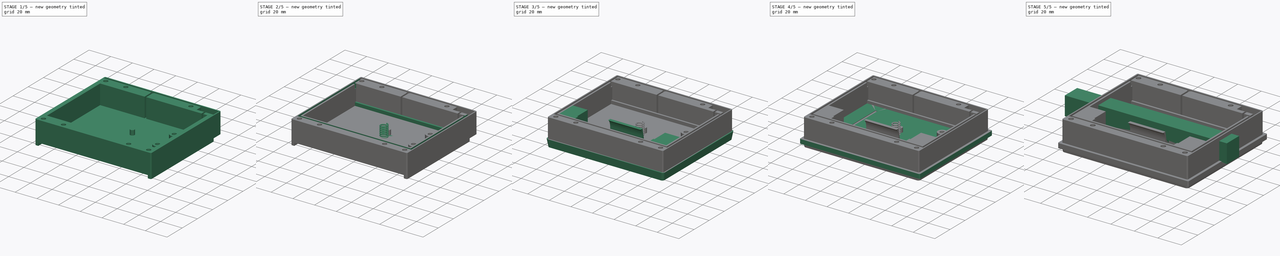
[diagram: build sequence overview — one tinted view per stage of 5, left to right]
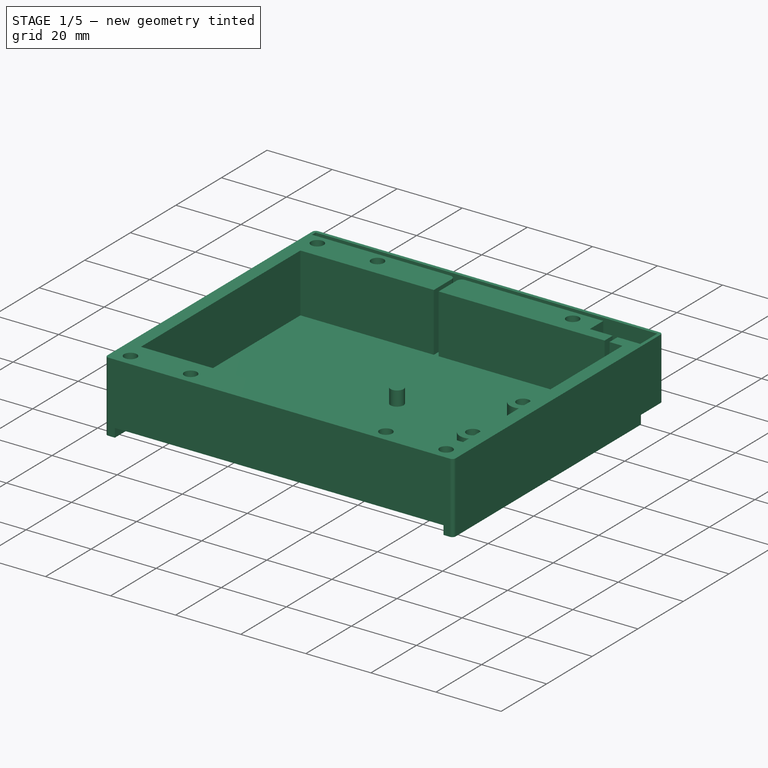
[diagram: stage 1 of 5 — iso view after this stage's code; geometry added in this stage tinted green]
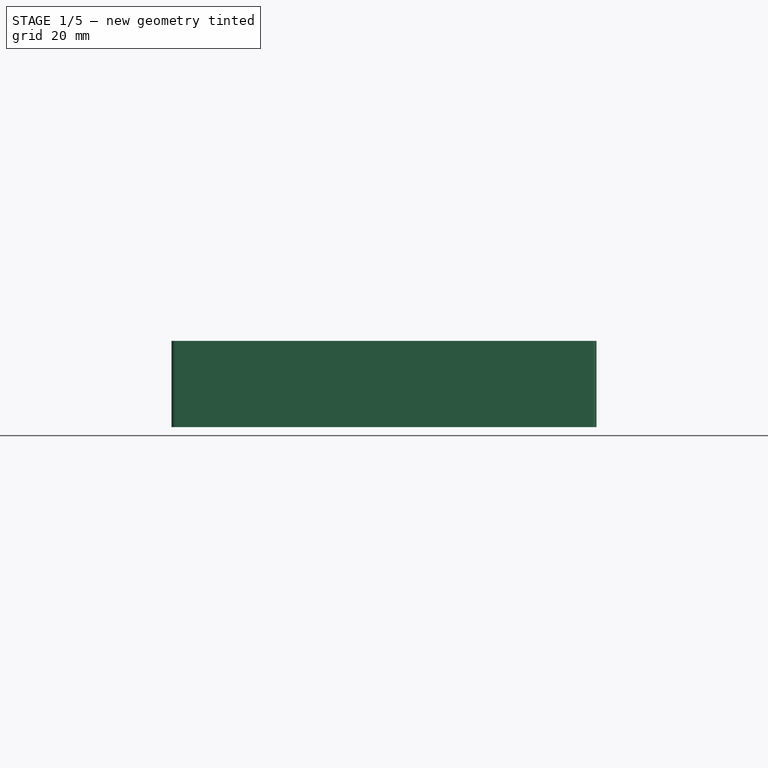
[diagram: stage 1 of 5 — front view after this stage's code; geometry added in this stage tinted green]
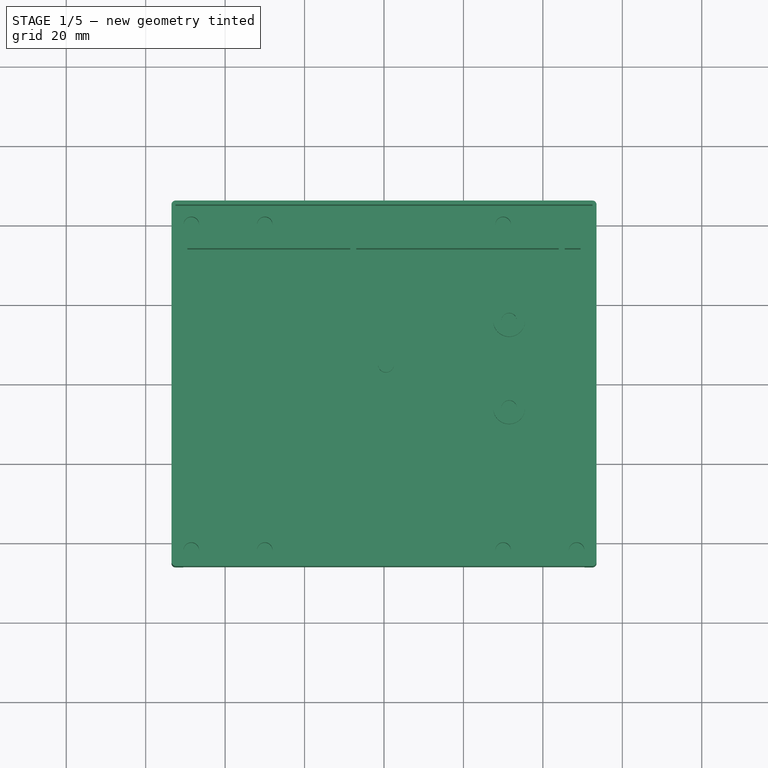
[diagram: stage 1 of 5 — top view after this stage's code; geometry added in this stage tinted green]
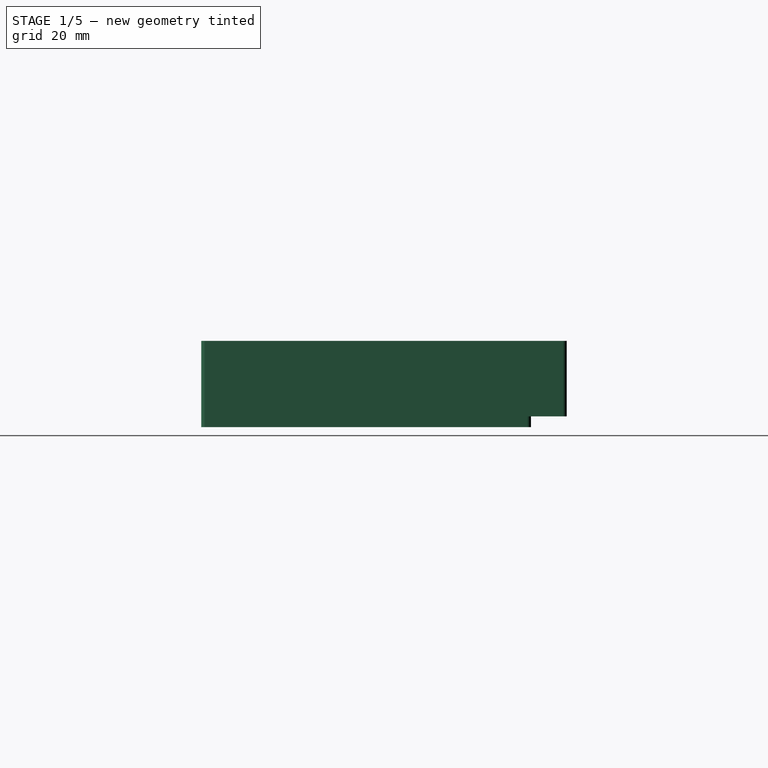
[diagram: stage 1 of 5 — right view after this stage's code; geometry added in this stage tinted green]
FCSTD DOCUMENT  (FreeCAD 1.0R39319 (Git))
Label: RAKTracker-V10
License: All rights reserved
LicenseURL: http://en.wikipedia.org/wiki/All_rights_reserved
objects: Sketcher::SketchObject×30, PartDesign::Pad×19, PartDesign::Pocket×8, PartDesign::Body×8, PartDesign::AdditiveLoft×2, Spreadsheet::Sheet×1, PartDesign::Hole×1, PartDesign::AdditiveHelix×1
note: 161 computed .brp shape members not serialized (recipe doc carries the construction recipe); baked Part::Feature solids carry a one-line shape summary decoded from their .brp

FEATURE [PartDesign::Body] Body  label="AntennaTestBlock"
  AllowCompound = false
  Group = -> [Sketch,Pad,Sketch001,Pocket,Sketch002,Pocket001]
  Origin = -> Origin
  Tip = -> Pocket001
FEATURE [Sketcher::SketchObject] Sketch019  label="LargeBoxBaseSketch"
  ArcFitTolerance = 1e-06
  AttachmentSupport = -> [XY_Plane006]
  FullyConstrained = true
  MakeInternals = false
  MapMode = 5
  expr: Constraints[20] = <<sheet>>.LargeBoxLength
  expr: Constraints[21] = <<sheet>>.LargeBoxWidth
  expr: Constraints[22] = <<sheet>>.BoxCornerRadius
  sketch-geometry (10):
    g0: LineSegment StartX=-53.5 StartY=45 StartZ=0 EndX=-53.5 EndY=-45 EndZ=0
    g1: LineSegment StartX=-52.5 StartY=-46 StartZ=0 EndX=52.5 EndY=-46 EndZ=0
    g2: LineSegment StartX=53.5 StartY=-45 StartZ=0 EndX=53.5 EndY=45 EndZ=0
    g3: LineSegment StartX=52.5 StartY=46 StartZ=0 EndX=-52.5 EndY=46 EndZ=0
    g4: ArcOfCircle CenterX=-52.5 CenterY=45 CenterZ=0 NormalX=0 NormalY=0 NormalZ=1 AngleXU=0 Radius=1 StartAngle=1.5708 EndAngle=3.14159
    g5: ArcOfCircle CenterX=-52.5 CenterY=-45 CenterZ=0 NormalX=0 NormalY=0 NormalZ=1 AngleXU=0 Radius=1 StartAngle=3.14159 EndAngle=4.71239
    g6: ArcOfCircle CenterX=52.5 CenterY=-45 CenterZ=0 NormalX=0 NormalY=0 NormalZ=1 AngleXU=0 Radius=1 StartAngle=4.71239 EndAngle=6.28319
    g7: ArcOfCircle CenterX=52.5 CenterY=45 CenterZ=0 NormalX=0 NormalY=0 NormalZ=1 AngleXU=0 Radius=1 StartAngle=-3.491e-13 EndAngle=1.5708
    g8: GeomPoint [constr] X=-53.5 Y=46 Z=0
    g9: GeomPoint [constr] X=53.5 Y=-46 Z=0
  constraints (23):
    c: Tangent(g0,g4) = -1.5708
    c: Tangent(g0,g5) = -1.5708
    c: Tangent(g1,g5) = -1.5708
    c: Tangent(g1,g6) = -1.5708
    c: Tangent(g2,g6) = -1.5708
    c: Tangent(g2,g7) = -1.5708
    c: Tangent(g3,g7) = -1.5708
    c: Tangent(g3,g4) = -1.5708
    c: Vertical(g0)
    c: Vertical(g2)
    c: Horizontal(g1)
    c: Horizontal(g3)
    c: Equal(g4,g5)
    c: Equal(g5,g6)
    c: Equal(g6,g7)
    c: PointOnObject(g8,g0)
    c: PointOnObject(g8,g3)
    c: PointOnObject(g9,g1)
    c: PointOnObject(g9,g2)
    c: Symmetric(g7,g5,g-1)
    c: DistanceX(g0,g2) = 107
    c: DistanceY(g1,g3) = 92
    c: Radius(g7) = 1
FEATURE [PartDesign::Pad] Pad011  label="LargeBoxBase"
  Direction = (0,0,1)
  Length = 1
  Length2 = 10
  Profile = -> Sketch019
  ReferenceAxis = -> Sketch019 [N_Axis]
  Suppressed = false
  Type = 0
  expr: Length = <<sheet>>.BoxBottomHeight
FEATURE [Sketcher::SketchObject] Sketch020  label="LargeBoxWallSketch"
  ArcFitTolerance = 1e-06
  AttachmentSupport = -> [XY_Plane006]
  FullyConstrained = true
  MakeInternals = false
  MapMode = 5
  expr: Constraints[20] = <<sheet>>.BoxCornerRadius
  expr: Constraints[21] = <<sheet>>.LargeBoxLength
  expr: Constraints[22] = <<sheet>>.LargeBoxWidth
  expr: Constraints[28] = <<sheet>>.WallWidthOther
  expr: Constraints[29] = <<sheet>>.WallWidthOther
  expr: Constraints[30] = <<sheet>>.WallWidthAntennaSize
  expr: Constraints[33] = <<sheet>>.WallWithLengthSize
  sketch-geometry (14):
    g0: LineSegment StartX=-53.5 StartY=45 StartZ=0 EndX=-53.5 EndY=-45 EndZ=0
    g1: LineSegment StartX=-52.5 StartY=-46 StartZ=0 EndX=52.5 EndY=-46 EndZ=0
    g2: LineSegment StartX=53.5 StartY=-45 StartZ=0 EndX=53.5 EndY=45 EndZ=0
    g3: LineSegment StartX=52.5 StartY=46 StartZ=0 EndX=-52.5 EndY=46 EndZ=0
    g4: ArcOfCircle CenterX=-52.5 CenterY=45 CenterZ=0 NormalX=0 NormalY=0 NormalZ=1 AngleXU=0 Radius=1 StartAngle=1.5708 EndAngle=3.14159
    g5: ArcOfCircle CenterX=-52.5 CenterY=-45 CenterZ=0 NormalX=0 NormalY=0 NormalZ=1 AngleXU=0 Radius=1 StartAngle=3.14159 EndAngle=4.71239
    g6: ArcOfCircle CenterX=52.5 CenterY=-45 CenterZ=0 NormalX=0 NormalY=0 NormalZ=1 AngleXU=0 Radius=1 StartAngle=4.71239 EndAngle=6.28319
    g7: ArcOfCircle CenterX=52.5 CenterY=45 CenterZ=0 NormalX=0 NormalY=0 NormalZ=1 AngleXU=0 Radius=1 StartAngle=6.85e-14 EndAngle=1.5708
    g8: GeomPoint [constr] X=-53.5 Y=46 Z=0
    g9: GeomPoint [constr] X=53.5 Y=-46 Z=0
    g10: LineSegment StartX=-49.5 StartY=34 StartZ=0 EndX=-49.5 EndY=-36 EndZ=0
    g11: LineSegment StartX=49.5 StartY=-36 StartZ=0 EndX=49.5 EndY=34 EndZ=0
    g12: LineSegment StartX=49.5 StartY=34 StartZ=0 EndX=-49.5 EndY=34 EndZ=0
    g13: LineSegment StartX=49.5 StartY=-36 StartZ=0 EndX=-49.5 EndY=-36 EndZ=0
  constraints (35):
    c: Tangent(g0,g4) = -1.5708
    c: Tangent(g0,g5) = -1.5708
    c: Tangent(g1,g5) = -1.5708
    c: Tangent(g1,g6) = -1.5708
    c: Tangent(g2,g6) = -1.5708
    c: Tangent(g2,g7) = -1.5708
    c: Tangent(g3,g7) = -1.5708
    c: Tangent(g3,g4) = -1.5708
    c: Vertical(g0)
    c: Vertical(g2)
    c: Horizontal(g1)
    c: Horizontal(g3)
    c: Equal(g4,g5)
    c: Equal(g5,g6)
    c: Equal(g6,g7)
    c: PointOnObject(g8,g0)
    c: PointOnObject(g8,g3)
    c: PointOnObject(g9,g1)
    c: PointOnObject(g9,g2)
    c: Symmetric(g4,g6,g-1)
    c: Radius(g4) = 1
    c: DistanceX(g0,g2) = 107
    c: DistanceY(g1,g3) = 92
    c: Coincident(g11,g12)
    c: Coincident(g12,g10)
    c: Vertical(g10)
    c: Vertical(g11)
    c: Horizontal(g12)
    c: DistanceX(g11,g2) = 4
    c: DistanceX(g0,g10) = 4
    c: DistanceY(g10,g3) = 12
    c: Coincident(g13,g11)
    c: Horizontal(g13)
    c: DistanceY(g1,g11) = 10
    c: Coincident(g10,g13)
FEATURE [PartDesign::Pad] Pad012  label="LargeBoxWall"
  BaseFeature = -> Pad011
  Direction = (0,0,1)
  Length = 19
  Length2 = 10
  Profile = -> Sketch020
  ReferenceAxis = -> Sketch020 [N_Axis]
  Suppressed = false
  Type = 0
  expr: Length = <<sheet>>.LargeBoxHeight
FEATURE [Sketcher::SketchObject] Sketch021  label="LargeBoxAntennaSketch"
  ArcFitTolerance = 1e-06
  AttachmentSupport = -> [Pad012]
  ExternalGeometry = -> [Pad012]
  FullyConstrained = true
  MakeInternals = false
  MapMode = 5
  Placement = pos=(0,0,19) rot=(0,0,1;0rad)
  expr: Constraints[13] = <<sheet>>.AntWireWidth
  expr: Constraints[15] = <<sheet>>.WallBetweenLoraAndSide
  expr: Constraints[26] = <<sheet>>.AntWireWidth
  expr: Constraints[27] = <<sheet>>.AntGPSLength
  expr: Constraints[32] = <<sheet>>.AntLargeLoraHeight
  expr: Constraints[36] = <<sheet>>.AntGPSHeight
  expr: Constraints[37] = (<<sheet>>.AntGPSLength - <<sheet>>.AntWireWidth) / 2
  expr: Constraints[3] = <<sheet>>.AntLargeLoraLength + <<sheet>>.AntGPSLength + <<sheet>>.DistanceGPSandLoraAnt
  expr: Constraints[48] = <<sheet>>.AntWireWidth
  sketch-geometry (16):
    g0: LineSegment StartX=-52.5 StartY=45 StartZ=0 EndX=-52.5 EndY=43.4 EndZ=0
    g1: LineSegment StartX=52.5 StartY=45 StartZ=0 EndX=-52.5 EndY=45 EndZ=0
    g2: LineSegment StartX=-8.5 StartY=34 StartZ=0 EndX=-7 EndY=34 EndZ=0
    g3: LineSegment StartX=-7 StartY=34 StartZ=0 EndX=-7 EndY=41.9 EndZ=0
    g4: LineSegment StartX=-8.5 StartY=41.9 StartZ=0 EndX=-8.5 EndY=34 EndZ=0
    g5: LineSegment StartX=-52.5 StartY=43.4 StartZ=0 EndX=-10 EndY=43.4 EndZ=0
    g6: LineSegment StartX=52.5 StartY=45 StartZ=0 EndX=52.5 EndY=37.5 EndZ=0
    g7: LineSegment StartX=37 StartY=37.5 StartZ=0 EndX=44 EndY=37.5 EndZ=0
    g8: LineSegment StartX=44 StartY=37.5 StartZ=0 EndX=44 EndY=34 EndZ=0
    g9: LineSegment StartX=45.5 StartY=37.5 StartZ=0 EndX=45.5 EndY=34 EndZ=0
    g10: LineSegment StartX=45.5 StartY=34 StartZ=0 EndX=44 EndY=34 EndZ=0
    g11: LineSegment StartX=-5.5 StartY=43.4 StartZ=0 EndX=37 EndY=43.4 EndZ=0
    g12: LineSegment StartX=37 StartY=43.4 StartZ=0 EndX=37 EndY=37.5 EndZ=0
    g13: LineSegment StartX=45.5 StartY=37.5 StartZ=0 EndX=52.5 EndY=37.5 EndZ=0
    g14: ArcOfCircle CenterX=-10 CenterY=41.9 CenterZ=0 NormalX=0 NormalY=0 NormalZ=1 AngleXU=0 Radius=1.5 StartAngle=-9e-16 EndAngle=1.5708
    g15: ArcOfCircle CenterX=-5.5 CenterY=41.9 CenterZ=0 NormalX=0 NormalY=0 NormalZ=1 AngleXU=0 Radius=1.5 StartAngle=1.5708 EndAngle=3.14159
  constraints (50):
    c: Coincident(g1,g0)
    c: Vertical(g0)
    c: Horizontal(g1)
    c: DistanceX(g0,g1) = 105
    c: Coincident(g2,g3)
    c: Coincident(g4,g2)
    c: Horizontal(g2)
    c: Vertical(g3)
    c: PointOnObject(g2,g-3)
    c: Coincident(g5,g0)
    c: Horizontal(g5)
    c: Horizontal(g4,g3)
    c: Vertical(g4)
    c: DistanceX(g2,g2) = 1.5
    c: Vertical(g0,g-4)
    c: DistanceY(g0,g-4) = 1
    c: Vertical(g6)
    c: Horizontal(g7)
    c: Coincident(g8,g7)
    c: PointOnObject(g8,g-3)
    c: Vertical(g8)
    c: PointOnObject(g9,g-3)
    c: Vertical(g9)
    c: Coincident(g10,g9)
    c: Coincident(g10,g8)
    c: Horizontal(g9,g7)
    c: DistanceX(g10,g10) = 1.5
    c: DistanceX(g7,g6) = 15.5
    c: Coincident(g1,g6)
    c: Vertical(g12)
    c: Coincident(g12,g7)
    c: Coincident(g12,g11)
    c: Distance(g0,g0) = 1.6
    c: Equal(g11,g5)
    c: Coincident(g13,g9)
    c: Horizontal(g13)
    c: DistanceY(g13,g1) = 7.5
    c: DistanceX(g7,g7) = 7
    c: Horizontal(g5,g11)
    c: Horizontal(g11)
    c: Coincident(g14,g5)
    c: Coincident(g14,g4)
    c: Coincident(g15,g3)
    c: Coincident(g15,g11)
    c: Vertical(g14,g5)
    c: Horizontal(g14,g4)
    c: Horizontal(g15,g3)
    c: Vertical(g15,g11)
    c: Radius(g14) = 1.5
    c: Coincident(g6,g13)
FEATURE [PartDesign::Pocket] Pocket008  label="LargeBoxAntenna"
  BaseFeature = -> Pad012
  Direction = (0,0,-1)
  Length = 18
  Length2 = 5
  Profile = -> Sketch021
  ReferenceAxis = -> Sketch021 [N_Axis]
  Suppressed = false
  Type = 0
  expr: Length = <<sheet>>.BoxInternalHeight
FEATURE [Sketcher::SketchObject] Sketch023  label="LargeBoxPCBMountSketch"
  ArcFitTolerance = 1e-06
  AttachmentSupport = -> [XY_Plane006]
  FullyConstrained = true
  MakeInternals = false
  MapMode = 5
  expr: Constraints[10] = <<sheet>>.PCBHoleDistance / 2
  expr: Constraints[2] = <<sheet>>.PCBMountDia
  expr: Constraints[3] = <<sheet>>.InsetDiaM3
  expr: Constraints[7] = <<sheet>>.PCBHoleDistance
  expr: Constraints[8] = <<sheet>>.PCBMountDia / 2
  expr: Constraints[9] = <<sheet>>.PCBHoleAwayFrom2Holes
  sketch-geometry (5):
    g0: Circle CenterX=31.5 CenterY=16 CenterZ=0 NormalX=0 NormalY=0 NormalZ=1 AngleXU=0 Radius=4
    g1: Circle CenterX=31.5 CenterY=16 CenterZ=0 NormalX=0 NormalY=0 NormalZ=1 AngleXU=0 Radius=1.95
    g2: Circle CenterX=31.5 CenterY=-6 CenterZ=0 NormalX=0 NormalY=0 NormalZ=1 AngleXU=0 Radius=4
    g3: Circle CenterX=31.5 CenterY=-6 CenterZ=0 NormalX=0 NormalY=0 NormalZ=1 AngleXU=0 Radius=1.95
    g4: Circle CenterX=0.5 CenterY=5 CenterZ=0 NormalX=0 NormalY=0 NormalZ=1 AngleXU=0 Radius=2
  constraints (13):
    c: Coincident(g1,g0)
    c: Coincident(g3,g2)
    c: Diameter(g0) = 8
    c: Diameter(g1) = 3.9
    c: Equal(g1,g3)
    c: Equal(g2,g0)
    c: Vertical(g2,g0)
    c: DistanceY(g2,g0) = 22
    c: Diameter(g4) = 4
    c: DistanceX(g4,g0) = 31
    c: DistanceY(g4,g0) = 11
    c: DistanceX(g2,g-3) = 20
    c: DistanceY(g-3,g2) = 32
FEATURE [PartDesign::Pad] Pad013  label="LargeBoxPCBMount"
  BaseFeature = -> Pocket008
  Direction = (0,0,1)
  Length = 5.5
  Length2 = 10
  Profile = -> Sketch023
  ReferenceAxis = -> Sketch023 [N_Axis]
  Suppressed = false
  Type = 0
  expr: Length = <<sheet>>.PCBMountHeight + <<sheet>>.BoxBottomHeight
FEATURE [Sketcher::SketchObject] Sketch024  label="LargeBoxLidHoleSketch"
  ArcFitTolerance = 1e-06
  AttachmentSupport = -> [Pad013]
  ExternalGeometry = -> [Pad013]
  FullyConstrained = true
  MakeInternals = false
  MapMode = 5
  Placement = pos=(0,0,19) rot=(0,0,1;0rad)
  expr: Constraints[0] = <<sheet>>.InsetDiaM3
  expr: Constraints[10] = (<<sheet>>.WallWithLengthSize - 2 mm) / 2
  expr: Constraints[12] = <<sheet>>.WallWithLengthSize / 2
  expr: Constraints[19] = <<sheet>>.WallWithLengthSize / 2
  expr: Constraints[9] = <<sheet>>.WallWidthAntennaSize / 2
  sketch-geometry (7):
    g0: Circle CenterX=-48.5 CenterY=-42 CenterZ=0 NormalX=0 NormalY=0 NormalZ=1 AngleXU=0 Radius=1.95
    g1: Circle CenterX=-30 CenterY=-42 CenterZ=0 NormalX=0 NormalY=0 NormalZ=1 AngleXU=0 Radius=1.95
    g2: Circle CenterX=30 CenterY=-42 CenterZ=0 NormalX=0 NormalY=0 NormalZ=1 AngleXU=0 Radius=1.95
    g3: Circle CenterX=-48.5 CenterY=40 CenterZ=0 NormalX=0 NormalY=0 NormalZ=1 AngleXU=0 Radius=1.95
    g4: Circle CenterX=-30 CenterY=40 CenterZ=0 NormalX=0 NormalY=0 NormalZ=1 AngleXU=0 Radius=1.95
    g5: Circle CenterX=30 CenterY=40 CenterZ=0 NormalX=0 NormalY=0 NormalZ=1 AngleXU=0 Radius=1.95
    g6: Circle CenterX=48.5 CenterY=-42 CenterZ=0 NormalX=0 NormalY=0 NormalZ=1 AngleXU=0 Radius=1.95
  constraints (20):
    c: Diameter(g3) = 3.9
    c: Equal(g3,g4)
    c: Equal(g4,g5)
    c: Equal(g3,g0)
    c: Equal(g0,g1)
    c: Equal(g1,g2)
    c: Horizontal(g0,g1)
    c: Horizontal(g1,g2)
    c: Horizontal(g3,g4)
    c: DistanceY(g3,g-4) = 6
    c: DistanceY(g-5,g0) = 4
    c: Vertical(g3,g0)
    c: DistanceX(g-3,g0) = 5
    c: DistanceX(g4,g5) = 60
    c: Vertical(g1,g4)
    c: Vertical(g2,g5)
    c: Symmetric(g4,g5,g-2)
    c: Equal(g3,g6)
    c: Horizontal(g2,g6)
    c: DistanceX(g6,g-6) = 5
FEATURE [PartDesign::Pocket] Pocket010  label="LargeBoxLidHole"
  BaseFeature = -> Pad013
  Direction = (0,0,-1)
  Length = 8
  Length2 = 5
  Profile = -> Sketch024
  ReferenceAxis = -> Sketch024 [N_Axis]
  Suppressed = false
  Type = 0
  expr: Length = <<sheet>>.InsertDepth
FEATURE [PartDesign::Body] Body007  label="LargeLid"
  AllowCompound = false
  Group = -> [Sketch027,Pad015,Sketch028,Pad016,Sketch029,Pocket012]
  Origin = -> Origin007
  Placement = pos=(0,0,36.1) rot=(0,0,1;0rad)
  Tip = -> Pocket012
FEATURE [PartDesign::Pad] Pad017  label="LargeBoxSolarPanelProtector"
  BaseFeature = -> Pocket010
  Direction = (0,0,-1)
  Length = 2.7
  Length2 = 10
  Profile = -> Sketch025
  ReferenceAxis = -> Sketch025 [N_Axis]
  Suppressed = false
  Type = 0
  expr: Length = <<sheet>>.SolarPanelLargeHeight
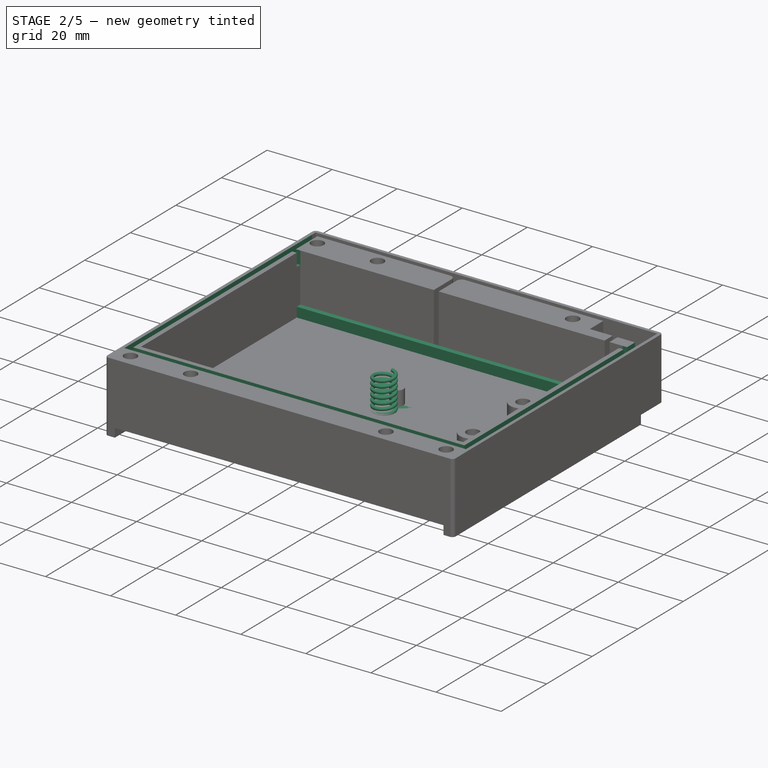
[diagram: stage 2 of 5 — iso view after this stage's code; geometry added in this stage tinted green]
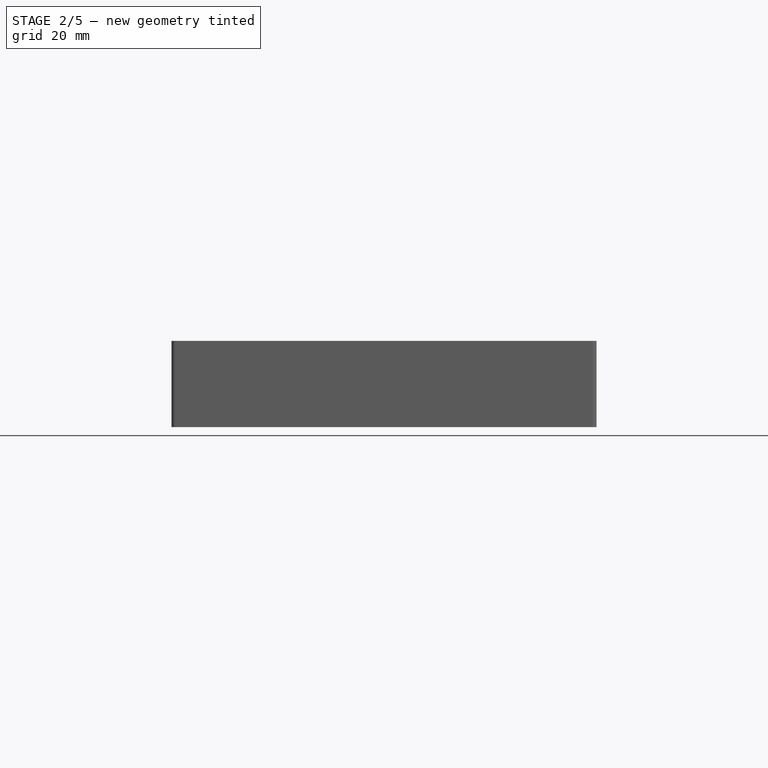
[diagram: stage 2 of 5 — front view after this stage's code; geometry added in this stage tinted green]
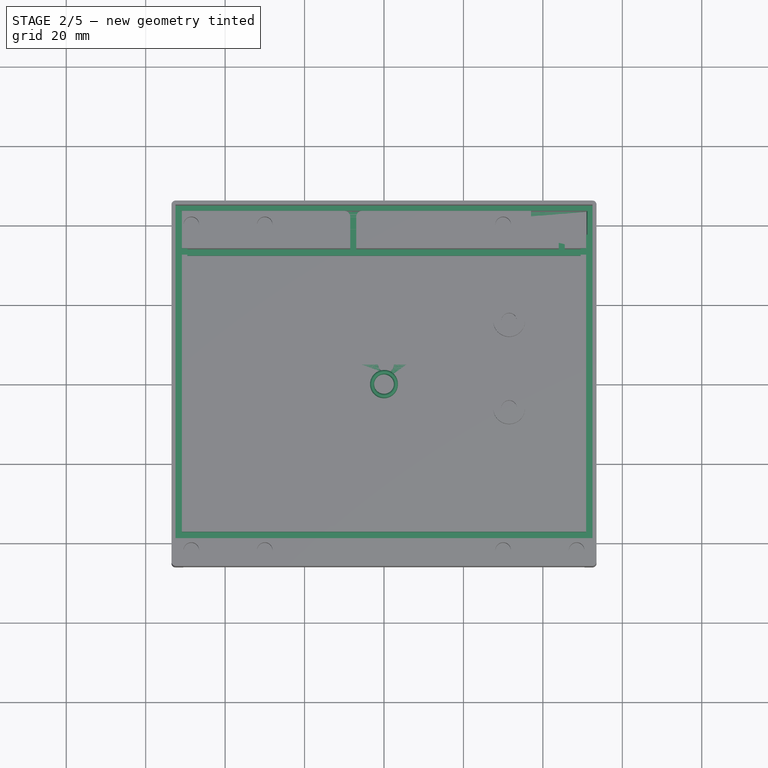
[diagram: stage 2 of 5 — top view after this stage's code; geometry added in this stage tinted green]
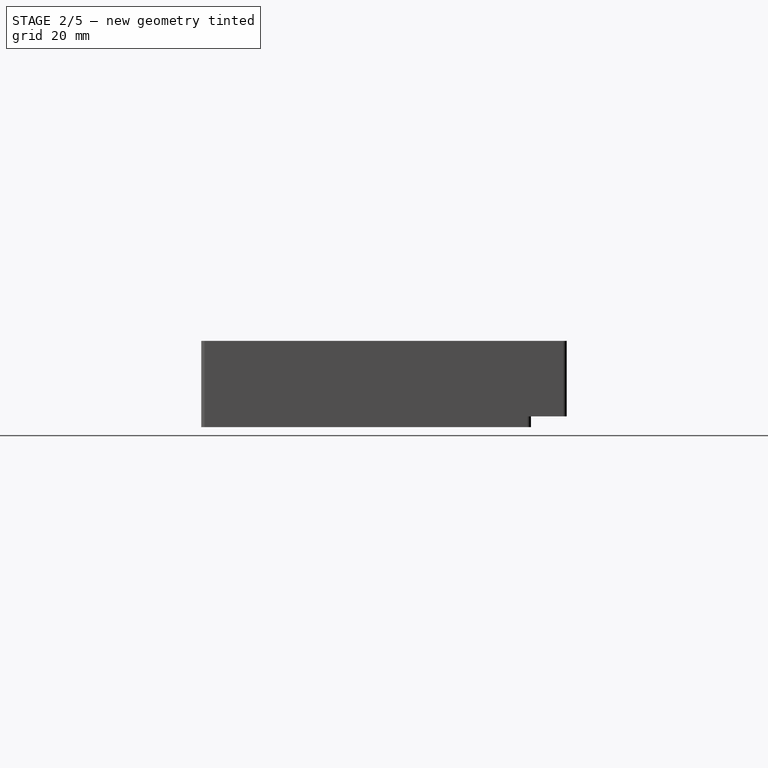
[diagram: stage 2 of 5 — right view after this stage's code; geometry added in this stage tinted green]
FEATURE [PartDesign::Pocket] Pocket013  label="LargeBoxSolarPanelHole"
  BaseFeature = -> Pad017
  Direction = (0,0,-1)
  Length = 19
  Length2 = 5
  Profile = -> Sketch026
  ReferenceAxis = -> Sketch026 [N_Axis]
  Reversed = true
  Suppressed = false
  Type = 0
  expr: Length = <<sheet>>.LargeBoxHeight
FEATURE [PartDesign::Body] Body008  label="LargeStrapHolder"
  AllowCompound = false
  Group = -> [Sketch030,Pad018,Sketch031,Pad019,Hole]
  Origin = -> Origin008
  Placement = pos=(0,-1.8,71.3) rot=(1,0,0;3.14159rad)
  Tip = -> Hole
FEATURE [Sketcher::SketchObject] Sketch045  label="LargeSealBaseSketch"
  ArcFitTolerance = 1e-06
  AttachmentSupport = -> [XY_Plane012]
  FullyConstrained = true
  MakeInternals = false
  MapMode = 5
  expr: Constraints[20] = <<sheet>>.BoxCornerRadius
  expr: Constraints[21] = <<sheet>>.LargeBoxLength
  expr: Constraints[22] = <<sheet>>.LargeBoxWidth
  expr: Constraints[34] = <<sheet>>.WallWidthAntennaSize / 2
  expr: Constraints[35] = (<<sheet>>.WallWithLengthSize - 2 mm) / 2
  expr: Constraints[39] = <<sheet>>.WallWithLengthSize / 2
  expr: Constraints[42] = <<sheet>>.WallWithLengthSize / 2
  sketch-geometry (17):
    g0: LineSegment StartX=-53.5 StartY=45 StartZ=0 EndX=-53.5 EndY=-45 EndZ=0
    g1: LineSegment StartX=-52.5 StartY=-46 StartZ=0 EndX=52.5 EndY=-46 EndZ=0
    g2: LineSegment StartX=53.5 StartY=-45 StartZ=0 EndX=53.5 EndY=45 EndZ=0
    g3: LineSegment StartX=52.5 StartY=46 StartZ=0 EndX=-52.5 EndY=46 EndZ=0
    g4: ArcOfCircle CenterX=-52.5 CenterY=45 CenterZ=0 NormalX=0 NormalY=0 NormalZ=1 AngleXU=0 Radius=1 StartAngle=1.5708 EndAngle=3.14159
    g5: ArcOfCircle CenterX=-52.5 CenterY=-45 CenterZ=0 NormalX=0 NormalY=0 NormalZ=1 AngleXU=0 Radius=1 StartAngle=3.14159 EndAngle=4.71239
    g6: ArcOfCircle CenterX=52.5 CenterY=-45 CenterZ=0 NormalX=0 NormalY=0 NormalZ=1 AngleXU=0 Radius=1 StartAngle=4.71239 EndAngle=6.28319
    g7: ArcOfCircle CenterX=52.5 CenterY=45 CenterZ=0 NormalX=0 NormalY=0 NormalZ=1 AngleXU=0 Radius=1 StartAngle=4e-16 EndAngle=1.5708
    g8: GeomPoint [constr] X=-53.5 Y=46 Z=0
    g9: GeomPoint [constr] X=53.5 Y=-46 Z=0
    g10: Circle CenterX=-48.5 CenterY=40 CenterZ=0 NormalX=0 NormalY=0 NormalZ=1 AngleXU=0 Radius=1.75
    g11: Circle CenterX=-30 CenterY=40 CenterZ=0 NormalX=0 NormalY=0 NormalZ=1 AngleXU=0 Radius=1.75
    g12: Circle CenterX=30 CenterY=40 CenterZ=0 NormalX=0 NormalY=0 NormalZ=1 AngleXU=0 Radius=1.75
    g13: Circle CenterX=48.5 CenterY=-42 CenterZ=0 NormalX=0 NormalY=0 NormalZ=1 AngleXU=0 Radius=1.75
    g14: Circle CenterX=30 CenterY=-42 CenterZ=0 NormalX=0 NormalY=0 NormalZ=1 AngleXU=0 Radius=1.75
    g15: Circle CenterX=-30 CenterY=-42 CenterZ=0 NormalX=0 NormalY=0 NormalZ=1 AngleXU=0 Radius=1.75
    g16: Circle CenterX=-48.5 CenterY=-42 CenterZ=0 NormalX=0 NormalY=0 NormalZ=1 AngleXU=0 Radius=1.75
  constraints (43):
    c: Tangent(g0,g4) = -1.5708
    c: Tangent(g0,g5) = -1.5708
    c: Tangent(g1,g5) = -1.5708
    c: Tangent(g1,g6) = -1.5708
    c: Tangent(g2,g6) = -1.5708
    c: Tangent(g2,g7) = -1.5708
    c: Tangent(g3,g7) = -1.5708
    c: Tangent(g3,g4) = -1.5708
    c: Vertical(g0)
    c: Vertical(g2)
    c: Horizontal(g1)
    c: Horizontal(g3)
    c: Equal(g4,g5)
    c: Equal(g5,g6)
    c: Equal(g6,g7)
    c: PointOnObject(g8,g0)
    c: PointOnObject(g8,g3)
    c: PointOnObject(g9,g1)
    c: PointOnObject(g9,g2)
    c: Symmetric(g8,g9,g-1)
    c: Radius(g7) = 1
    c: DistanceX(g0,g2) = 107
    c: DistanceY(g1,g3) = 92
    c: Diameter(g10) = 3.5
    c: Equal(g10,g11)
    c: Equal(g11,g12)
    c: Equal(g10,g16)
    c: Equal(g16,g15)
    c: Equal(g15,g14)
    c: Equal(g14,g13)
    c: Horizontal(g16,g15)
    c: Horizontal(g15,g14)
    c: Horizontal(g14,g13)
    c: Horizontal(g10,g11)
    c: DistanceY(g10,g3) = 6
    c: DistanceY(g1,g16) = 4
    c: DistanceX(g11,g12) = 60
    c: Vertical(g12,g14)
    c: Vertical(g11,g15)
    c: DistanceX(g0,g16) = 5
    c: Symmetric(g11,g12,g-2)
    c: Vertical(g16,g10)
    c: DistanceX(g13,g2) = 5
FEATURE [PartDesign::Pad] Pad028  label="LargeSealbase"
  Direction = (0,0,1)
  Length = 1
  Length2 = 10
  Profile = -> Sketch045
  ReferenceAxis = -> Sketch045 [N_Axis]
  Suppressed = false
  Type = 0
FEATURE [PartDesign::Body] Body014  label="LargeSealSloped"
  AllowCompound = false
  Group = -> [Sketch050,Pad032,Sketch051,Sketch052,AdditiveLoft]
  Origin = -> Origin014
  Placement = pos=(0,0,33) rot=(0,0,1;0rad)
  Tip = -> AdditiveLoft
FEATURE [Sketcher::SketchObject] Sketch053  label="LargeBoxSealSketch"
  ArcFitTolerance = 1e-06
  AttachmentSupport = -> [Pocket013]
  ExternalGeometry = -> [Pocket013,Sketch021,Sketch020]
  FullyConstrained = true
  MakeInternals = false
  MapMode = 5
  Placement = pos=(0,0,19) rot=(0,0,1;0rad)
  expr: .Constraints.SealWidth = <<sheet>>.AntLargeLoraHeight
  expr: Constraints[10] = <<sheet>>.AntLargeLoraHeight
  expr: Constraints[34] = <<sheet>>.AntLargeLoraHeight
  expr: Constraints[35] = <<sheet>>.AntLargeLoraHeight
  expr: Constraints[36] = <<sheet>>.AntLargeLoraHeight
  sketch-geometry (16):
    g0: LineSegment StartX=-52.5 StartY=43.4 StartZ=0 EndX=-52.5 EndY=-39 EndZ=0
    g1: LineSegment StartX=-52.5 StartY=-39 StartZ=0 EndX=52.5 EndY=-39 EndZ=0
    g2: LineSegment StartX=52.5 StartY=-39 StartZ=0 EndX=52.5 EndY=37.5 EndZ=0
    g3: LineSegment StartX=50.9 StartY=37.5 StartZ=0 EndX=52.5 EndY=37.5 EndZ=0
    g4: LineSegment StartX=-50.9 StartY=43.4 StartZ=0 EndX=-52.5 EndY=43.4 EndZ=0
    g5: LineSegment StartX=-50.9 StartY=-37.4 StartZ=0 EndX=50.9 EndY=-37.4 EndZ=0
    g6: LineSegment StartX=-50.9 StartY=43.4 StartZ=0 EndX=-50.9 EndY=34 EndZ=0
    g7: LineSegment StartX=-50.9 StartY=-37.4 StartZ=0 EndX=-50.9 EndY=32.4 EndZ=0
    g8: LineSegment StartX=-50.9 StartY=32.4 StartZ=0 EndX=-47.9 EndY=32.4 EndZ=0
    g9: LineSegment StartX=-50.9 StartY=34 StartZ=0 EndX=-47.9 EndY=34 EndZ=0
    g10: LineSegment StartX=-47.9 StartY=34 StartZ=0 EndX=-47.9 EndY=32.4 EndZ=0
    g11: LineSegment StartX=50.9 StartY=37.5 StartZ=0 EndX=50.9 EndY=34 EndZ=0
    g12: LineSegment StartX=50.9 StartY=34 StartZ=0 EndX=47.9 EndY=34 EndZ=0
    g13: LineSegment StartX=47.9 StartY=34 StartZ=0 EndX=47.9 EndY=32.4 EndZ=0
    g14: LineSegment StartX=47.9 StartY=32.4 StartZ=0 EndX=50.9 EndY=32.4 EndZ=0
    g15: LineSegment StartX=50.9 StartY=32.4 StartZ=0 EndX=50.9 EndY=-37.4 EndZ=0
  constraints (46):
    c: Coincident(g0,g-3)
    c: Vertical(g0)
    c: Horizontal(g1)
    c: Coincident(g2,g-4)
    c: Vertical(g2)
    c: PointOnObject(g3,g-4)
    c: Coincident(g3,g2)
    c: PointOnObject(g4,g-3)
    c: Coincident(g4,g0)
    c: DistanceX(g4,g4) = 1.6  'SealWidth'
    c: DistanceX(g3,g2) = 1.6
    c: Horizontal(g5)
    c: Coincident(g6,g4)
    c: Vertical(g6)
    c: Vertical(g7)
    c: Coincident(g8,g7)
    c: Horizontal(g8)
    c: Coincident(g9,g6)
    c: Coincident(g10,g9)
    c: Coincident(g10,g8)
    c: Coincident(g11,g3)
    c: Vertical(g11)
    c: Coincident(g12,g11)
    c: Coincident(g13,g12)
    c: Coincident(g14,g13)
    c: Coincident(g15,g14)
    c: Vertical(g15)
    c: Horizontal(g9)
    c: Horizontal(g12)
    c: Horizontal(g14)
    c: Vertical(g10)
    c: Vertical(g13)
    c: Horizontal(g9,g-5)
    c: Horizontal(g12,g-5)
    c: DistanceY(g10,g10) = 1.6
    c: DistanceY(g13,g13) = 1.6
    c: DistanceY(g1,g5) = 1.6
    c: DistanceX(g9,g9) = 3
    c: Distance(g12,g12) = 3
    c: Coincident(g1,g0)
    c: Coincident(g5,g7)
    c: Vertical(g6,g7)
    c: Coincident(g15,g5)
    c: Coincident(g2,g1)
    c: Vertical(g11,g14)
    c: DistanceY(g-6,g0) = 7
FEATURE [PartDesign::Pocket] Pocket020  label="LargeBoxSeal"
  BaseFeature = -> Pocket013
  Direction = (0,0,-1)
  Length = 4
  Length2 = 5
  Profile = -> Sketch053
  ReferenceAxis = -> Sketch053 [N_Axis]
  Suppressed = false
  Type = 0
FEATURE [PartDesign::Body] Body006  label="LargeBox"
  AllowCompound = false
  Group = -> [Sketch019,Pad011,Sketch020,Pad012,Sketch021,Pocket008,Sketch023,Pad013,Sketch024,Pocket010,Sketch025,Sketch026,Pad017,Pocket013,Sketch053,Pocket020,Sketch056,Sketch059,Pad033,Pad034,Sketch060,Pad035,Pad036,Pad037]
  Origin = -> Origin006
  Tip = -> Pad037
FEATURE [Sketcher::SketchObject] Sketch061
  ArcFitTolerance = 1e-06
  AttachmentSupport = -> [XY_Plane015]
  FullyConstrained = true
  MakeInternals = false
  MapMode = 5
  sketch-geometry (10):
    g0: LineSegment StartX=-5.6 StartY=5 StartZ=0 EndX=-5.6 EndY=-7 EndZ=0
    g1: LineSegment StartX=5.6 StartY=-7 StartZ=0 EndX=5.6 EndY=5 EndZ=0
    g2: LineSegment StartX=5.6 StartY=5 StartZ=0 EndX=-5.6 EndY=5 EndZ=0
    g3: LineSegment StartX=-1.5 StartY=-7 StartZ=0 EndX=-1.5 EndY=-13.3 EndZ=0
    g4: LineSegment StartX=1.5 StartY=-7 StartZ=0 EndX=1.5 EndY=-13.3 EndZ=0
    g5: LineSegment StartX=1.5 StartY=-13.3 StartZ=0 EndX=-1.5 EndY=-13.3 EndZ=0
    g6: LineSegment StartX=-5.6 StartY=-7 StartZ=0 EndX=-1.5 EndY=-7 EndZ=0
    g7: LineSegment StartX=1.5 StartY=-7 StartZ=0 EndX=5.6 EndY=-7 EndZ=0
    g8: Circle CenterX=0 CenterY=-6.15 CenterZ=0 NormalX=0 NormalY=0 NormalZ=1 AngleXU=0 Radius=0.85
    g9: Circle CenterX=0 CenterY=-11.8 CenterZ=0 NormalX=0 NormalY=0 NormalZ=1 AngleXU=0 Radius=0.76
  constraints (29):
    c: Coincident(g1,g2)
    c: Coincident(g2,g0)
    c: Vertical(g0)
    c: Vertical(g1)
    c: DistanceX(g2,g2) = 11.2
    c: DistanceY(g1,g1) = 12
    c: DistanceY(g1,g-1) = 7
    c: Symmetric(g1,g0,g-2)
    c: Vertical(g4)
    c: Coincident(g5,g4)
    c: Horizontal(g5)
    c: Coincident(g6,g0)
    c: Coincident(g6,g3)
    c: Horizontal(g6)
    c: Coincident(g7,g4)
    c: Coincident(g7,g1)
    c: Horizontal(g7)
    c: Coincident(g5,g3)
    c: Vertical(g3)
    c: DistanceX(g5,g5) = 3
    c: DistanceY(g4,g1) = 18.3
    c: Equal(g6,g7)
    c: Horizontal(g3,g4)
    c: PointOnObject(g8,g-2)
    c: PointOnObject(g9,g-2)
    c: Diameter(g8) = 1.7
    c: Diameter(g9) = 1.52
    c: DistanceY(g4,g9) = 1.5
    c: DistanceY(g4,g8) = 0.85
FEATURE [PartDesign::Pad] Pad038
  Direction = (0,0,1)
  Length = 1
  Length2 = 10
  Profile = -> Sketch061
  ReferenceAxis = -> Sketch061 [N_Axis]
  Suppressed = false
  Type = 0
FEATURE [Sketcher::SketchObject] Sketch062
  ArcFitTolerance = 1e-06
  AttachmentSupport = -> [XZ_Plane015]
  FullyConstrained = true
  MakeInternals = false
  MapMode = 5
  Placement = pos=(0,0,0) rot=(1,0,0;1.5708rad)
  sketch-geometry (1):
    g0: Circle CenterX=-3 CenterY=0.5 CenterZ=0 NormalX=0 NormalY=0 NormalZ=1 AngleXU=0 Radius=0.5
  constraints (3):
    c: Diameter(g0) = 1
    c: DistanceX(g0,g-1) = 3
    c: DistanceY(g-1,g0) = 0.5
FEATURE [PartDesign::AdditiveHelix] AdditiveHelix
  Angle = 0
  Axis = (0,2e-16,1)
  Base = (0,0,0)
  BaseFeature = -> Pad038
  Growth = 0
  HasBeenEdited = true
  Height = 10.4988
  LeftHanded = false
  Mode = 0
  Outside = false
  Pitch = 1.56
  Profile = -> Sketch062
  ReferenceAxis = -> Sketch062 [V_Axis]
  Suppressed = false
  Tolerance = 0.1
  Turns = 6.73
FEATURE [PartDesign::Body] Body015  label="BatteryHolderSpring"
  AllowCompound = false
  Group = -> [Sketch061,Pad038,Sketch062,AdditiveHelix]
  Origin = -> Origin015
  Placement = pos=(35.8,-26.7,10.2) rot=(0.707107,0,-0.707107;3.14159rad)
  Tip = -> AdditiveHelix
FEATURE [Sketcher::SketchObject] Sketch063  label="LargeSealSealSketch"
  ArcFitTolerance = 1e-06
  AttachmentSupport = -> [XY_Plane012]
  ExternalGeometry = -> [Sketch045]
  FullyConstrained = true
  MakeInternals = false
  MapMode = 5
  expr: Constraints[23] = <<LargeBoxSealSketch>>.Constraints.SealWidth
  expr: Constraints[28] = <<LargeBoxSealSketch>>.Constraints.SealWidth
  expr: Constraints[29] = <<LargeBoxSealSketch>>.Constraints.SealWidth
  expr: Constraints[42] = .Constraints.SealFromEdge
  expr: Constraints[43] = <<sheet>>.WallWidthAntennaSize
  sketch-geometry (16):
    g0: LineSegment StartX=-50.9 StartY=43.4 StartZ=0 EndX=-50.9 EndY=34 EndZ=0
    g1: LineSegment StartX=-50.9 StartY=34 StartZ=0 EndX=50.9 EndY=34 EndZ=0
    g2: LineSegment StartX=50.9 StartY=34 StartZ=0 EndX=50.9 EndY=43.4 EndZ=0
    g3: LineSegment StartX=50.9 StartY=43.4 StartZ=0 EndX=-50.9 EndY=43.4 EndZ=0
    g4: LineSegment StartX=-50.9 StartY=32.4 StartZ=0 EndX=-50.9 EndY=-37.4 EndZ=0
    g5: LineSegment StartX=-50.9 StartY=-37.4 StartZ=0 EndX=50.9 EndY=-37.4 EndZ=0
    g6: LineSegment StartX=50.9 StartY=-37.4 StartZ=0 EndX=50.9 EndY=32.4 EndZ=0
    g7: LineSegment StartX=50.9 StartY=32.4 StartZ=0 EndX=-50.9 EndY=32.4 EndZ=0
    g8: LineSegment StartX=52.5 StartY=-39 StartZ=0 EndX=52.5 EndY=45 EndZ=0
    g9: LineSegment StartX=52.5 StartY=45 StartZ=0 EndX=-52.5 EndY=45 EndZ=0
    g10: LineSegment StartX=-52.5 StartY=45 StartZ=0 EndX=-52.5 EndY=-39 EndZ=0
    g11: LineSegment StartX=-52.5 StartY=-39 StartZ=0 EndX=52.5 EndY=-39 EndZ=0
    g12: LineSegment [constr] StartX=-52.5 StartY=45 StartZ=0 EndX=-52.5 EndY=43.4 EndZ=0
    g13: LineSegment [constr] StartX=-52.5 StartY=43.4 StartZ=0 EndX=-50.9 EndY=43.4 EndZ=0
    g14: LineSegment [constr] StartX=-50.9 StartY=43.4 StartZ=0 EndX=-50.9 EndY=45 EndZ=0
    g15: LineSegment [constr] StartX=-50.9 StartY=45 StartZ=0 EndX=-52.5 EndY=45 EndZ=0
  constraints (44):
    c: Coincident(g0,g1)
    c: Coincident(g1,g2)
    c: Coincident(g2,g3)
    c: Coincident(g3,g0)
    c: Vertical(g0)
    c: Vertical(g2)
    c: Horizontal(g1)
    c: Coincident(g4,g5)
    c: Coincident(g5,g6)
    c: Coincident(g6,g7)
    c: Coincident(g7,g4)
    c: Vertical(g4)
    c: Vertical(g6)
    c: Horizontal(g5)
    c: Horizontal(g7)
    c: Coincident(g8,g9)
    c: Coincident(g9,g10)
    c: Coincident(g10,g11)
    c: Coincident(g11,g8)
    c: Vertical(g8)
    c: Vertical(g10)
    c: Horizontal(g11)
    c: DistanceX(g-3,g9) = 1  'SealFromEdge'
    c: DistanceX(g9,g0) = 1.6
    c: Vertical(g4,g0)
    c: Symmetric(g9,g8,g-2)
    c: Symmetric(g0,g2,g-2)
    c: Vertical(g1,g6)
    c: DistanceY(g4,g0) = 1.6
    c: DistanceY(g10,g4) = 1.6
    c: Coincident(g12,g13)
    c: Coincident(g13,g14)
    c: Coincident(g14,g15)
    c: Coincident(g15,g12)
    c: Vertical(g12)
    c: Vertical(g14)
    c: Horizontal(g13)
    c: Horizontal(g15)
    c: Coincident(g12,g9)
    c: Coincident(g13,g0)
    c: Equal(g14,g13)
    c: DistanceY(g-4,g10) = 7
    c: DistanceY(g9,g-5) = 1
    c: DistanceY(g0,g-5) = 12
FEATURE [Sketcher::SketchObject] Sketch064  label="LargeSealSealSketch001"
  ArcFitTolerance = 1e-06
  AttachmentOffset = pos=(0,0,4) rot=(0,0,1;0rad)
  AttachmentSupport = -> [XY_Plane012]
  ExternalGeometry = -> [Sketch045]
  FullyConstrained = true
  MakeInternals = false
  MapMode = 5
  Placement = pos=(0,0,4) rot=(0,0,1;0rad)
  expr: Constraints[23] = <<LargeBoxSealSketch>>.Constraints.SealWidth - 0.3 mm
  expr: Constraints[28] = <<LargeBoxSealSketch>>.Constraints.SealWidth
  expr: Constraints[29] = <<LargeBoxSealSketch>>.Constraints.SealWidth - 0.3 mm
  expr: Constraints[42] = .Constraints.SealFromEdge
  expr: Constraints[43] = <<sheet>>.WallWidthAntennaSize
  sketch-geometry (16):
    g0: LineSegment StartX=-51.2 StartY=43.7 StartZ=0 EndX=-51.2 EndY=34 EndZ=0
    g1: LineSegment StartX=-51.2 StartY=34 StartZ=0 EndX=51.2 EndY=34 EndZ=0
    g2: LineSegment StartX=51.2 StartY=34 StartZ=0 EndX=51.2 EndY=43.7 EndZ=0
    g3: LineSegment StartX=51.2 StartY=43.7 StartZ=0 EndX=-51.2 EndY=43.7 EndZ=0
    g4: LineSegment StartX=-51.2 StartY=32.4 StartZ=0 EndX=-51.2 EndY=-37.7 EndZ=0
    g5: LineSegment StartX=-51.2 StartY=-37.7 StartZ=0 EndX=51.2 EndY=-37.7 EndZ=0
    g6: LineSegment StartX=51.2 StartY=-37.7 StartZ=0 EndX=51.2 EndY=32.4 EndZ=0
    g7: LineSegment StartX=51.2 StartY=32.4 StartZ=0 EndX=-51.2 EndY=32.4 EndZ=0
    g8: LineSegment StartX=52.5 StartY=-39 StartZ=0 EndX=52.5 EndY=45 EndZ=0
    g9: LineSegment StartX=52.5 StartY=45 StartZ=0 EndX=-52.5 EndY=45 EndZ=0
    g10: LineSegment StartX=-52.5 StartY=45 StartZ=0 EndX=-52.5 EndY=-39 EndZ=0
    g11: LineSegment StartX=-52.5 StartY=-39 StartZ=0 EndX=52.5 EndY=-39 EndZ=0
    g12: LineSegment [constr] StartX=-52.5 StartY=45 StartZ=0 EndX=-52.5 EndY=43.7 EndZ=0
    g13: LineSegment [constr] StartX=-52.5 StartY=43.7 StartZ=0 EndX=-51.2 EndY=43.7 EndZ=0
    g14: LineSegment [constr] StartX=-51.2 StartY=43.7 StartZ=0 EndX=-51.2 EndY=45 EndZ=0
    g15: LineSegment [constr] StartX=-51.2 StartY=45 StartZ=0 EndX=-52.5 EndY=45 EndZ=0
  constraints (44):
    c: Coincident(g0,g1)
    c: Coincident(g1,g2)
    c: Coincident(g2,g3)
    c: Coincident(g3,g0)
    c: Vertical(g0)
    c: Vertical(g2)
    c: Horizontal(g1)
    c: Coincident(g4,g5)
    c: Coincident(g5,g6)
    c: Coincident(g6,g7)
    c: Coincident(g7,g4)
    c: Vertical(g4)
    c: Vertical(g6)
    c: Horizontal(g5)
    c: Horizontal(g7)
    c: Coincident(g8,g9)
    c: Coincident(g9,g10)
    c: Coincident(g10,g11)
    c: Coincident(g11,g8)
    c: Vertical(g8)
    c: Vertical(g10)
    c: Horizontal(g11)
    c: DistanceX(g-3,g9) = 1  'SealFromEdge'
    c: DistanceX(g9,g0) = 1.3
    c: Vertical(g4,g0)
    c: Symmetric(g9,g8,g-2)
    c: Symmetric(g0,g2,g-2)
    c: Vertical(g1,g6)
    c: DistanceY(g4,g0) = 1.6
    c: DistanceY(g10,g4) = 1.3
    c: Coincident(g12,g13)
    c: Coincident(g13,g14)
    c: Coincident(g14,g15)
    c: Coincident(g15,g12)
    c: Vertical(g12)
    c: Vertical(g14)
    c: Horizontal(g13)
    c: Horizontal(g15)
    c: Coincident(g12,g9)
    c: Coincident(g13,g0)
    c: Equal(g14,g13)
    c: DistanceY(g-4,g10) = 7
    c: DistanceY(g9,g-5) = 1
    c: DistanceY(g0,g-5) = 12
FEATURE [PartDesign::AdditiveLoft] AdditiveLoft001
  BaseFeature = -> Pad028
  Closed = false
  Profile = -> Sketch063
  Ruled = false
  Sections = -> [Sketch064]
  Suppressed = false
FEATURE [PartDesign::Body] Body012  label="LargeSeal"
  AllowCompound = false
  Group = -> [Sketch045,Pad028,Sketch063,Sketch064,AdditiveLoft001]
  Origin = -> Origin012
  Placement = pos=(-2.3e-15,0,51.4) rot=(0,1,0;3.14159rad)
  Tip = -> AdditiveLoft001
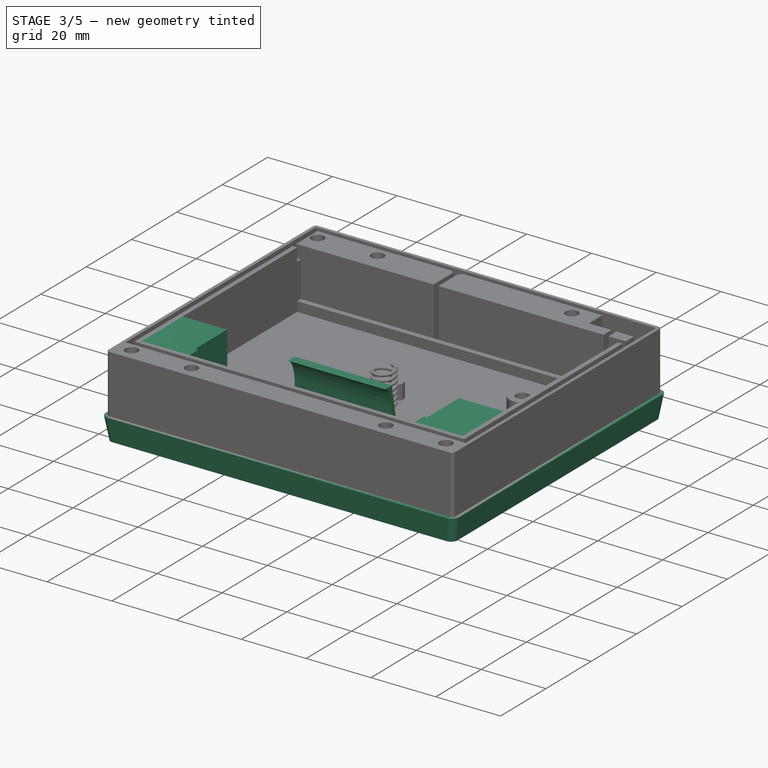
[diagram: stage 3 of 5 — iso view after this stage's code; geometry added in this stage tinted green]
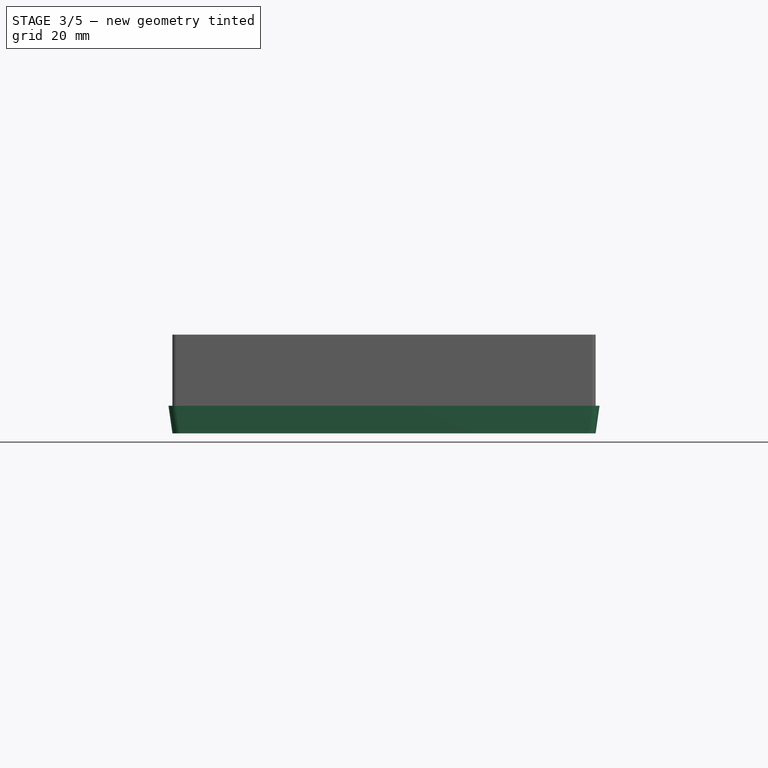
[diagram: stage 3 of 5 — front view after this stage's code; geometry added in this stage tinted green]
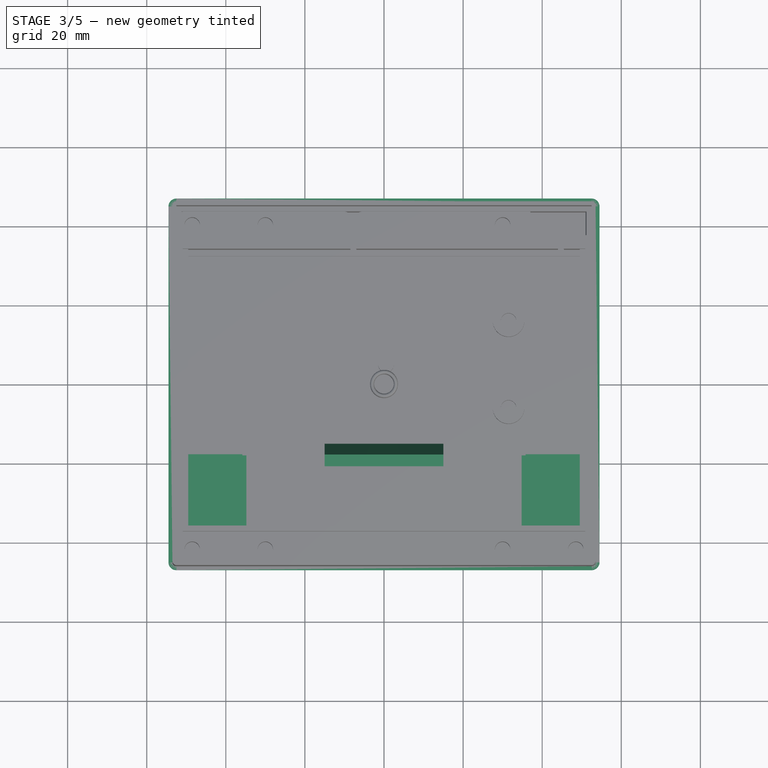
[diagram: stage 3 of 5 — top view after this stage's code; geometry added in this stage tinted green]
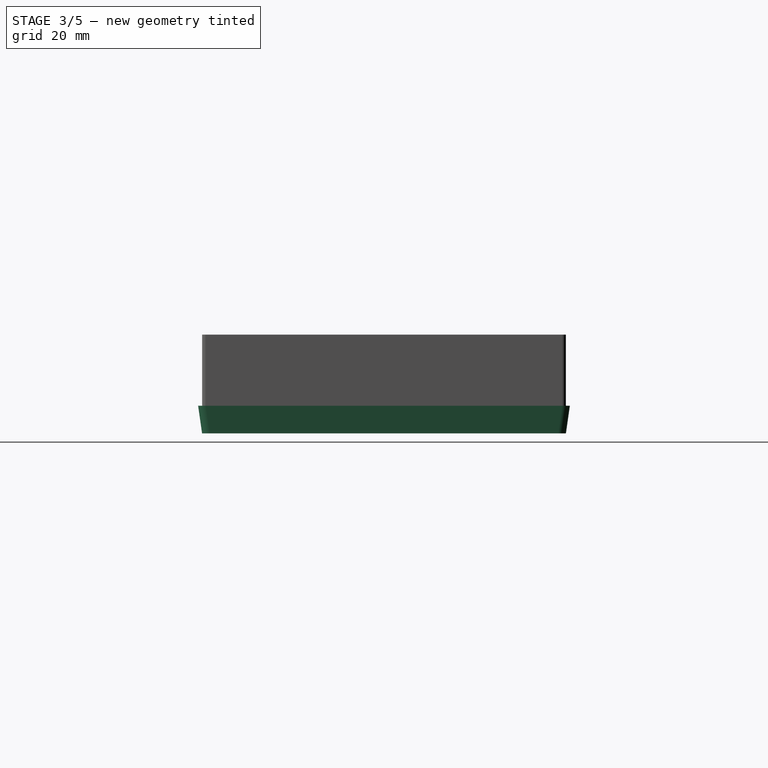
[diagram: stage 3 of 5 — right view after this stage's code; geometry added in this stage tinted green]
FEATURE [PartDesign::Body] Body013  label="LargeLidSeal"
  AllowCompound = false
  Group = -> [Sketch047,Pad030,Sketch048,Pad031,Sketch049,Pocket019]
  Origin = -> Origin013
  Placement = pos=(0,0,36.1) rot=(0,0,1;0rad)
  Tip = -> Pocket019
FEATURE [Sketcher::SketchObject] Sketch050
  ArcFitTolerance = 1e-06
  AttachmentSupport = -> [XY_Plane014]
  FullyConstrained = true
  MakeInternals = false
  MapMode = 5
  expr: Constraints[20] = <<sheet>>.BoxCornerRadius
  expr: Constraints[21] = <<sheet>>.LargeBoxLength
  expr: Constraints[22] = <<sheet>>.LargeBoxWidth
  expr: Constraints[34] = <<sheet>>.WallWidthAntennaSize / 2
  expr: Constraints[35] = <<sheet>>.WallWithLengthSize / 2
  expr: Constraints[39] = <<sheet>>.WallWithLengthSize / 2
  expr: Constraints[42] = <<sheet>>.WallWithLengthSize / 2
  sketch-geometry (17):
    g0: LineSegment StartX=-53.5 StartY=45 StartZ=0 EndX=-53.5 EndY=-45 EndZ=0
    g1: LineSegment StartX=-52.5 StartY=-46 StartZ=0 EndX=52.5 EndY=-46 EndZ=0
    g2: LineSegment StartX=53.5 StartY=-45 StartZ=0 EndX=53.5 EndY=45 EndZ=0
    g3: LineSegment StartX=52.5 StartY=46 StartZ=0 EndX=-52.5 EndY=46 EndZ=0
    g4: ArcOfCircle CenterX=-52.5 CenterY=45 CenterZ=0 NormalX=0 NormalY=0 NormalZ=1 AngleXU=0 Radius=1 StartAngle=1.5708 EndAngle=3.14159
    g5: ArcOfCircle CenterX=-52.5 CenterY=-45 CenterZ=0 NormalX=0 NormalY=0 NormalZ=1 AngleXU=0 Radius=1 StartAngle=3.14159 EndAngle=4.71239
    g6: ArcOfCircle CenterX=52.5 CenterY=-45 CenterZ=0 NormalX=0 NormalY=0 NormalZ=1 AngleXU=0 Radius=1 StartAngle=4.71239 EndAngle=6.28319
    g7: ArcOfCircle CenterX=52.5 CenterY=45 CenterZ=0 NormalX=0 NormalY=0 NormalZ=1 AngleXU=0 Radius=1 StartAngle=-2.7e-15 EndAngle=1.5708
    g8: GeomPoint [constr] X=-53.5 Y=46 Z=0
    g9: GeomPoint [constr] X=53.5 Y=-46 Z=0
    g10: Circle CenterX=-48.5 CenterY=40 CenterZ=0 NormalX=0 NormalY=0 NormalZ=1 AngleXU=0 Radius=1.75
    g11: Circle CenterX=-30 CenterY=40 CenterZ=0 NormalX=0 NormalY=0 NormalZ=1 AngleXU=0 Radius=1.75
    g12: Circle CenterX=30 CenterY=40 CenterZ=0 NormalX=0 NormalY=0 NormalZ=1 AngleXU=0 Radius=1.75
    g13: Circle CenterX=48.5 CenterY=-41 CenterZ=0 NormalX=0 NormalY=0 NormalZ=1 AngleXU=0 Radius=1.75
    g14: Circle CenterX=30 CenterY=-41 CenterZ=0 NormalX=0 NormalY=0 NormalZ=1 AngleXU=0 Radius=1.75
    g15: Circle CenterX=-30 CenterY=-41 CenterZ=0 NormalX=0 NormalY=0 NormalZ=1 AngleXU=0 Radius=1.75
    g16: Circle CenterX=-48.5 CenterY=-41 CenterZ=0 NormalX=0 NormalY=0 NormalZ=1 AngleXU=0 Radius=1.75
  constraints (43):
    c: Tangent(g0,g4) = -1.5708
    c: Tangent(g0,g5) = -1.5708
    c: Tangent(g1,g5) = -1.5708
    c: Tangent(g1,g6) = -1.5708
    c: Tangent(g2,g6) = -1.5708
    c: Tangent(g2,g7) = -1.5708
    c: Tangent(g3,g7) = -1.5708
    c: Tangent(g3,g4) = -1.5708
    c: Vertical(g0)
    c: Vertical(g2)
    c: Horizontal(g1)
    c: Horizontal(g3)
    c: Equal(g4,g5)
    c: Equal(g5,g6)
    c: Equal(g6,g7)
    c: PointOnObject(g8,g0)
    c: PointOnObject(g8,g3)
    c: PointOnObject(g9,g1)
    c: PointOnObject(g9,g2)
    c: Symmetric(g8,g9,g-1)
    c: Radius(g7) = 1
    c: DistanceX(g0,g2) = 107
    c: DistanceY(g1,g3) = 92
    c: Diameter(g10) = 3.5
    c: Equal(g10,g11)
    c: Equal(g11,g12)
    c: Equal(g10,g16)
    c: Equal(g16,g15)
    c: Equal(g15,g14)
    c: Equal(g14,g13)
    c: Horizontal(g16,g15)
    c: Horizontal(g15,g14)
    c: Horizontal(g14,g13)
    c: Horizontal(g10,g11)
    c: DistanceY(g10,g3) = 6
    c: DistanceY(g1,g16) = 5
    c: DistanceX(g11,g12) = 60
    c: Vertical(g12,g14)
    c: Vertical(g11,g15)
    c: DistanceX(g0,g16) = 5
    c: Symmetric(g11,g12,g-2)
    c: Vertical(g16,g10)
    c: DistanceX(g13,g2) = 5
FEATURE [PartDesign::Pad] Pad032  label="LargeSealSlopedBase"
  Direction = (0,0,1)
  Length = 1
  Length2 = 10
  Profile = -> Sketch050
  ReferenceAxis = -> Sketch050 [N_Axis]
  Suppressed = false
  Type = 0
FEATURE [Sketcher::SketchObject] Sketch051  label="LargeSealWallBase"
  ArcFitTolerance = 1e-06
  AttachmentOffset = pos=(0,0,1) rot=(0,0,1;0rad)
  AttachmentSupport = -> [XY_Plane014]
  ExternalGeometry = -> [Sketch050]
  FullyConstrained = true
  MakeInternals = false
  MapMode = 5
  Placement = pos=(0,0,1) rot=(0,0,1;0rad)
  sketch-geometry (18):
    g0: LineSegment StartX=-54.5 StartY=45 StartZ=0 EndX=-54.5 EndY=-45 EndZ=0
    g1: LineSegment StartX=-52.5 StartY=-47 StartZ=0 EndX=52.5 EndY=-47 EndZ=0
    g2: LineSegment StartX=54.5 StartY=-45 StartZ=0 EndX=54.5 EndY=45 EndZ=0
    g3: LineSegment StartX=52.5 StartY=47 StartZ=0 EndX=-52.5 EndY=47 EndZ=0
    g4: ArcOfCircle CenterX=-52.5 CenterY=45 CenterZ=0 NormalX=0 NormalY=0 NormalZ=1 AngleXU=0 Radius=2 StartAngle=1.5708 EndAngle=3.14159
    g5: ArcOfCircle CenterX=-52.5 CenterY=-45 CenterZ=0 NormalX=0 NormalY=0 NormalZ=1 AngleXU=0 Radius=2 StartAngle=3.14159 EndAngle=4.71239
    g6: ArcOfCircle CenterX=52.5 CenterY=-45 CenterZ=0 NormalX=0 NormalY=0 NormalZ=1 AngleXU=0 Radius=2 StartAngle=4.71239 EndAngle=6.28319
    g7: ArcOfCircle CenterX=52.5 CenterY=45 CenterZ=0 NormalX=0 NormalY=0 NormalZ=1 AngleXU=0 Radius=2 StartAngle=5e-16 EndAngle=1.5708
    g8: LineSegment StartX=-53.5 StartY=45 StartZ=0 EndX=-53.5 EndY=-45 EndZ=0
    g9: LineSegment StartX=-52.5 StartY=-46 StartZ=0 EndX=52.5 EndY=-46 EndZ=0
    g10: LineSegment StartX=53.5 StartY=-45 StartZ=0 EndX=53.5 EndY=45 EndZ=0
    g11: LineSegment StartX=52.5 StartY=46 StartZ=0 EndX=-52.5 EndY=46 EndZ=0
    g12: ArcOfCircle CenterX=-52.5 CenterY=45 CenterZ=0 NormalX=0 NormalY=0 NormalZ=1 AngleXU=0 Radius=1 StartAngle=1.5708 EndAngle=3.14159
    g13: ArcOfCircle CenterX=-52.5 CenterY=-45 CenterZ=0 NormalX=0 NormalY=0 NormalZ=1 AngleXU=0 Radius=1 StartAngle=3.14159 EndAngle=4.71239
    g14: ArcOfCircle CenterX=52.5 CenterY=-45 CenterZ=0 NormalX=0 NormalY=0 NormalZ=1 AngleXU=0 Radius=1 StartAngle=4.71239 EndAngle=6.28319
    g15: ArcOfCircle CenterX=52.5 CenterY=45 CenterZ=0 NormalX=0 NormalY=0 NormalZ=1 AngleXU=0 Radius=1 StartAngle=-9e-16 EndAngle=1.5708
    g16: GeomPoint [constr] X=-54.5 Y=47 Z=0
    g17: GeomPoint [constr] X=54.5 Y=-47 Z=0
  constraints (37):
    c: Tangent(g0,g4) = -1.5708
    c: Tangent(g0,g5) = -1.5708
    c: Tangent(g1,g5) = -1.5708
    c: Tangent(g1,g6) = -1.5708
    c: Tangent(g2,g6) = -1.5708
    c: Tangent(g2,g7) = -1.5708
    c: Tangent(g3,g7) = -1.5708
    c: Tangent(g3,g4) = -1.5708
    c: Vertical(g0)
    c: Vertical(g2)
    c: Horizontal(g1)
    c: Horizontal(g3)
    c: Equal(g4,g5)
    c: Equal(g5,g6)
    c: Equal(g6,g7)
    c: Tangent(g8,g12) = -1.5708
    c: Tangent(g8,g13) = -1.5708
    c: Tangent(g9,g13) = -1.5708
    c: Tangent(g9,g14) = -1.5708
    c: Tangent(g10,g14) = -1.5708
    c: Tangent(g10,g15) = -1.5708
    c: Tangent(g11,g15) = -1.5708
    c: Tangent(g11,g12) = -1.5708
    c: Coincident(g4,g12)
    c: Coincident(g5,g13)
    c: Coincident(g6,g14)
    c: Coincident(g7,g15)
    c: Vertical(g8)
    c: Vertical(g10)
    c: PointOnObject(g16,g0)
    c: PointOnObject(g16,g3)
    c: PointOnObject(g17,g1)
    c: PointOnObject(g17,g2)
    c: Coincident(g10,g-5)
    c: Coincident(g-6,g9)
    c: Coincident(g11,g-3)
    c: DistanceY(g11,g3) = 1
FEATURE [Sketcher::SketchObject] Sketch052
  ArcFitTolerance = 1e-06
  AttachmentOffset = pos=(0,0,-6) rot=(0,0,1;0rad)
  AttachmentSupport = -> [XY_Plane014]
  FullyConstrained = true
  MakeInternals = false
  MapMode = 5
  Placement = pos=(0,0,-6) rot=(0,0,1;0rad)
  expr: .AttachmentOffset.Base.z = -6 mm
  expr: Constraints[37] = <<sheet>>.LargeBoxLength
  expr: Constraints[38] = <<sheet>>.LargeBoxWidth
  sketch-geometry (18):
    g0: LineSegment StartX=-53.5 StartY=44 StartZ=0 EndX=-53.5 EndY=-44 EndZ=0
    g1: LineSegment StartX=-51.5 StartY=-46 StartZ=0 EndX=51.5 EndY=-46 EndZ=0
    g2: LineSegment StartX=53.5 StartY=-44 StartZ=0 EndX=53.5 EndY=44 EndZ=0
    g3: LineSegment StartX=51.5 StartY=46 StartZ=0 EndX=-51.5 EndY=46 EndZ=0
    g4: ArcOfCircle CenterX=-51.5 CenterY=44 CenterZ=0 NormalX=0 NormalY=0 NormalZ=1 AngleXU=0 Radius=2 StartAngle=1.5708 EndAngle=3.14159
    g5: ArcOfCircle CenterX=-51.5 CenterY=-44 CenterZ=0 NormalX=0 NormalY=0 NormalZ=1 AngleXU=0 Radius=2 StartAngle=3.14159 EndAngle=4.71239
    g6: ArcOfCircle CenterX=51.5 CenterY=-44 CenterZ=0 NormalX=0 NormalY=0 NormalZ=1 AngleXU=0 Radius=2 StartAngle=4.71239 EndAngle=6.28319
    g7: ArcOfCircle CenterX=51.5 CenterY=44 CenterZ=0 NormalX=0 NormalY=0 NormalZ=1 AngleXU=0 Radius=2 StartAngle=1.2e-15 EndAngle=1.5708
    g8: LineSegment StartX=-52.5 StartY=44 StartZ=0 EndX=-52.5 EndY=-44 EndZ=0
    g9: LineSegment StartX=-51.5 StartY=-45 StartZ=0 EndX=51.5 EndY=-45 EndZ=0
    g10: LineSegment StartX=52.5 StartY=-44 StartZ=0 EndX=52.5 EndY=44 EndZ=0
    g11: LineSegment StartX=51.5 StartY=45 StartZ=0 EndX=-51.5 EndY=45 EndZ=0
    g12: ArcOfCircle CenterX=-51.5 CenterY=44 CenterZ=0 NormalX=0 NormalY=0 NormalZ=1 AngleXU=0 Radius=1 StartAngle=1.5708 EndAngle=3.14159
    g13: ArcOfCircle CenterX=-51.5 CenterY=-44 CenterZ=0 NormalX=0 NormalY=0 NormalZ=1 AngleXU=0 Radius=1 StartAngle=3.14159 EndAngle=4.71239
    g14: ArcOfCircle CenterX=51.5 CenterY=-44 CenterZ=0 NormalX=0 NormalY=0 NormalZ=1 AngleXU=0 Radius=1 StartAngle=4.71239 EndAngle=6.28319
    g15: ArcOfCircle CenterX=51.5 CenterY=44 CenterZ=0 NormalX=0 NormalY=0 NormalZ=1 AngleXU=0 Radius=1 StartAngle=-9e-16 EndAngle=1.5708
    g16: GeomPoint [constr] X=-53.5 Y=46 Z=0
    g17: GeomPoint [constr] X=53.5 Y=-46 Z=0
  constraints (39):
    c: Tangent(g0,g4) = -1.5708
    c: Tangent(g0,g5) = -1.5708
    c: Tangent(g1,g5) = -1.5708
    c: Tangent(g1,g6) = -1.5708
    c: Tangent(g2,g6) = -1.5708
    c: Tangent(g2,g7) = -1.5708
    c: Tangent(g3,g7) = -1.5708
    c: Tangent(g3,g4) = -1.5708
    c: Vertical(g0)
    c: Vertical(g2)
    c: Horizontal(g1)
    c: Horizontal(g3)
    c: Equal(g4,g5)
    c: Equal(g5,g6)
    c: Equal(g6,g7)
    c: Tangent(g8,g12) = -1.5708
    c: Tangent(g8,g13) = -1.5708
    c: Tangent(g9,g13) = -1.5708
    c: Tangent(g9,g14) = -1.5708
    c: Tangent(g10,g14) = -1.5708
    c: Tangent(g10,g15) = -1.5708
    c: Tangent(g11,g15) = -1.5708
    c: Tangent(g11,g12) = -1.5708
    c: Coincident(g4,g12)
    c: Coincident(g5,g13)
    c: Coincident(g6,g14)
    c: Coincident(g7,g15)
    c: Vertical(g8)
    c: Vertical(g10)
    c: Horizontal(g9)
    c: PointOnObject(g16,g0)
    c: PointOnObject(g16,g3)
    c: PointOnObject(g17,g1)
    c: PointOnObject(g17,g2)
    c: Symmetric(g17,g16,g-1)
    c: Radius(g12) = 1
    c: DistanceY(g11,g3) = 1
    c: DistanceX(g0,g2) = 107
    c: DistanceY(g1,g3) = 92
FEATURE [PartDesign::AdditiveLoft] AdditiveLoft
  BaseFeature = -> Pad032
  Closed = false
  Profile = -> Sketch051
  Ruled = false
  Sections = -> [Sketch052]
  Suppressed = false
FEATURE [Sketcher::SketchObject] Sketch056  label="LargeBoxBatteryHolderSketch"
  ArcFitTolerance = 1e-06
  AttachmentSupport = -> [YZ_Plane006]
  FullyConstrained = true
  MakeInternals = false
  MapMode = 5
  Placement = pos=(0,0,0) rot=(0.57735,0.57735,0.57735;2.0944rad)
  sketch-geometry (11):
    g0: Circle [constr] CenterX=-21 CenterY=17 CenterZ=0 NormalX=0 NormalY=0 NormalZ=1 AngleXU=0 Radius=1
    g1: Circle [constr] CenterX=-18 CenterY=17 CenterZ=0 NormalX=0 NormalY=0 NormalZ=1 AngleXU=0 Radius=0.5
    g2: Circle [constr] CenterX=-18 CenterY=10.5 CenterZ=0 NormalX=0 NormalY=0 NormalZ=1 AngleXU=0 Radius=1
    g3: BSplineCurve PolesCount=3 KnotsCount=2 Degree=2 IsPeriodic=0
    g4: GeomPoint [constr] X=-21 Y=17 Z=0
    g5: GeomPoint [constr] X=-18 Y=10.5 Z=0
    g6: LineSegment StartX=-18 StartY=1 StartZ=0 EndX=-18 EndY=10.5 EndZ=0
    g7: LineSegment StartX=-18 StartY=1 StartZ=0 EndX=-15 EndY=1 EndZ=0
    g8: LineSegment StartX=-15 StartY=1 StartZ=0 EndX=-18 EndY=17 EndZ=0
    g9: LineSegment StartX=-18 StartY=17 StartZ=0 EndX=-21 EndY=17 EndZ=0
    g10: LineSegment [constr] StartX=-18 StartY=19 StartZ=0 EndX=-18 EndY=17 EndZ=0
  constraints (25):
    c: Weight(g0) = 1
    c: InternalAlignment(g0,g3)
    c: InternalAlignment(g1,g3)
    c: InternalAlignment(g2,g3)
    c: InternalAlignment(g4,g3)
    c: InternalAlignment(g5,g3)
    c: Coincident(g6,g-3)
    c: Coincident(g6,g3)
    c: Vertical(g6)
    c: Coincident(g7,g6)
    c: Horizontal(g7)
    c: Coincident(g8,g7)
    c: Coincident(g9,g3)
    c: DistanceX(g7,g7) = 3
    c: DistanceX(g3,g1) = 3
    c: Coincident(g10,g-3)
    c: PointOnObject(g10,g-3)
    c: DistanceY(g10,g10) = 2
    c: Coincident(g1,g10)
    c: Horizontal(g3,g1)
    c: Coincident(g9,g1)
    c: Coincident(g8,g1)
    c: DistanceY(g6,g3) = 9.5
    c: Weight(g1) = 0.5
    c: Weight(g2) = 1
FEATURE [Sketcher::SketchObject] Sketch059  label="LargeBoxBatteryClipSketch"
  ArcFitTolerance = 1e-06
  AttachmentSupport = -> [YZ_Plane006]
  FullyConstrained = true
  MakeInternals = false
  MapMode = 5
  Placement = pos=(0,0,0) rot=(0.57735,0.57735,0.57735;2.0944rad)
  expr: Constraints[14] = <<sheet>>.BatteryWidth
  expr: Constraints[15] = <<sheet>>.BatteryWidth
  expr: Constraints[16] = <<sheet>>.BoxBottomHeight
  expr: Constraints[19] = <<sheet>>.LargeBoxWidth / 2 - <<sheet>>.WallWithLengthSize
  sketch-geometry (7):
    g0: LineSegment StartX=-36 StartY=19 StartZ=0 EndX=-36 EndY=1 EndZ=0
    g1: LineSegment StartX=-36 StartY=1 StartZ=0 EndX=-18 EndY=1 EndZ=0
    g2: LineSegment StartX=-18 StartY=1 StartZ=0 EndX=-18 EndY=4 EndZ=0
    g3: LineSegment StartX=-18 StartY=4 StartZ=0 EndX=-32 EndY=4 EndZ=0
    g4: LineSegment StartX=-32 StartY=4 StartZ=0 EndX=-32 EndY=19 EndZ=0
    g5: LineSegment StartX=-32 StartY=19 StartZ=0 EndX=-36 EndY=19 EndZ=0
    g6: LineSegment [constr] StartX=0 StartY=0 StartZ=0 EndX=-36 EndY=0 EndZ=0
  constraints (21):
    c: Vertical(g0)
    c: Coincident(g1,g0)
    c: Horizontal(g1)
    c: Vertical(g2)
    c: Coincident(g3,g2)
    c: Coincident(g4,g3)
    c: Coincident(g5,g4)
    c: Coincident(g5,g0)
    c: Horizontal(g5)
    c: Coincident(g1,g2)
    c: Horizontal(g3)
    c: Vertical(g4)
    c: DistanceY(g2,g2) = 3
    c: DistanceX(g5,g5) = 4
    c: DistanceX(g1,g1) = 18
    c: DistanceY(g0,g0) = 18
    c: DistanceY(g-1,g1) = 1
    c: Coincident(g6,g-1)
    c: PointOnObject(g6,g-1)
    c: DistanceX(g6,g6) = 36
    c: Vertical(g6,g0)
FEATURE [PartDesign::Pad] Pad033  label="LargeBoxBatteryClipRight"
  BaseFeature = -> Pocket020
  Direction = (1,0,0)
  Length = 35.8
  Length2 = -34.8
  Profile = -> Sketch059
  ReferenceAxis = -> Sketch059 [N_Axis]
  Suppressed = false
  Type = 4
  expr: Length = <<sheet>>.BatteryContactDistance / 2
  expr: Length2 = (<<sheet>>.BatteryContactDistance / 2 - 1 mm) * -1
FEATURE [PartDesign::Pad] Pad034  label="LargeBoxBatteryClipLeft"
  BaseFeature = -> Pad033
  Direction = (1,0,0)
  Length = -34.8
  Length2 = 35.8
  Profile = -> Sketch059
  ReferenceAxis = -> Sketch059 [N_Axis]
  Suppressed = false
  Type = 4
  expr: Length = (<<sheet>>.BatteryContactDistance / 2 - 1 mm) * -1
  expr: Length2 = <<sheet>>.BatteryContactDistance / 2 * 1
FEATURE [Sketcher::SketchObject] Sketch060  label="LargeBoxBatteryBackSketch"
  ArcFitTolerance = 1e-06
  AttachmentSupport = -> [YZ_Plane006]
  ExternalGeometry = -> [Sketch059]
  FullyConstrained = true
  MakeInternals = false
  MapMode = 5
  Placement = pos=(0,0,0) rot=(0.57735,0.57735,0.57735;2.0944rad)
  sketch-geometry (4):
    g0: LineSegment StartX=-36 StartY=1 StartZ=0 EndX=-18 EndY=1 EndZ=0
    g1: LineSegment StartX=-18 StartY=1 StartZ=0 EndX=-18 EndY=19 EndZ=0
    g2: LineSegment StartX=-18 StartY=19 StartZ=0 EndX=-36 EndY=19 EndZ=0
    g3: LineSegment StartX=-36 StartY=19 StartZ=0 EndX=-36 EndY=1 EndZ=0
  constraints (9):
    c: Coincident(g0,g1)
    c: Coincident(g1,g2)
    c: Coincident(g2,g3)
    c: Coincident(g3,g0)
    c: Horizontal(g2)
    c: Vertical(g1)
    c: Coincident(g0,g-3)
    c: Coincident(g2,g-3)
    c: Coincident(g0,g-4)
FEATURE [PartDesign::Pad] Pad035  label="LargeBoxBatteryBackRight"
  BaseFeature = -> Pad034
  Direction = (1,0,0)
  Length = -49.8
  Length2 = 35.8
  Offset = 20
  Profile = -> Sketch060
  ReferenceAxis = -> Sketch060 [N_Axis]
  Suppressed = false
  Type = 4
  expr: Length = (<<sheet>>.BatteryContactDistance / 2 + 14 mm) * -1
  expr: Length2 = <<sheet>>.BatteryContactDistance / 2
FEATURE [PartDesign::Pad] Pad036  label="LargeBoxBatteryBack"
  BaseFeature = -> Pad035
  Direction = (1,0,0)
  Length = 49.8
  Length2 = -35.8
  Profile = -> Sketch060
  ReferenceAxis = -> Sketch060 [N_Axis]
  Suppressed = false
  Type = 4
  expr: Length = <<sheet>>.BatteryContactDistance / 2 + 14 mm
  expr: Length2 = <<sheet>>.BatteryContactDistance / 2 * -1
FEATURE [PartDesign::Pad] Pad037  label="LargeBoxBatteryHolder"
  BaseFeature = -> Pad036
  Direction = (1,0,0)
  Length = 15
  Length2 = 15
  Profile = -> Sketch056
  ReferenceAxis = -> Sketch056 [N_Axis]
  Suppressed = false
  Type = 4
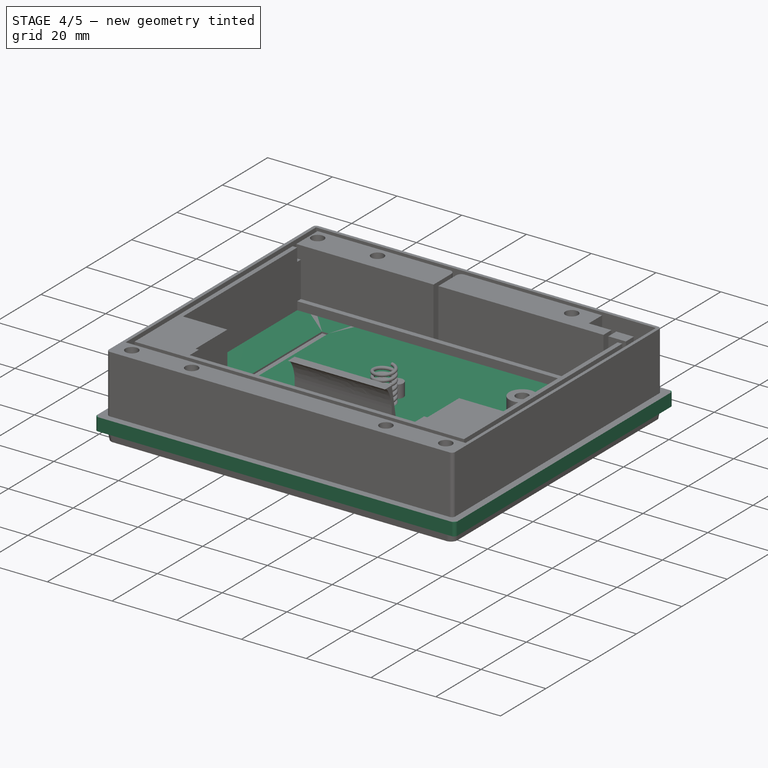
[diagram: stage 4 of 5 — iso view after this stage's code; geometry added in this stage tinted green]
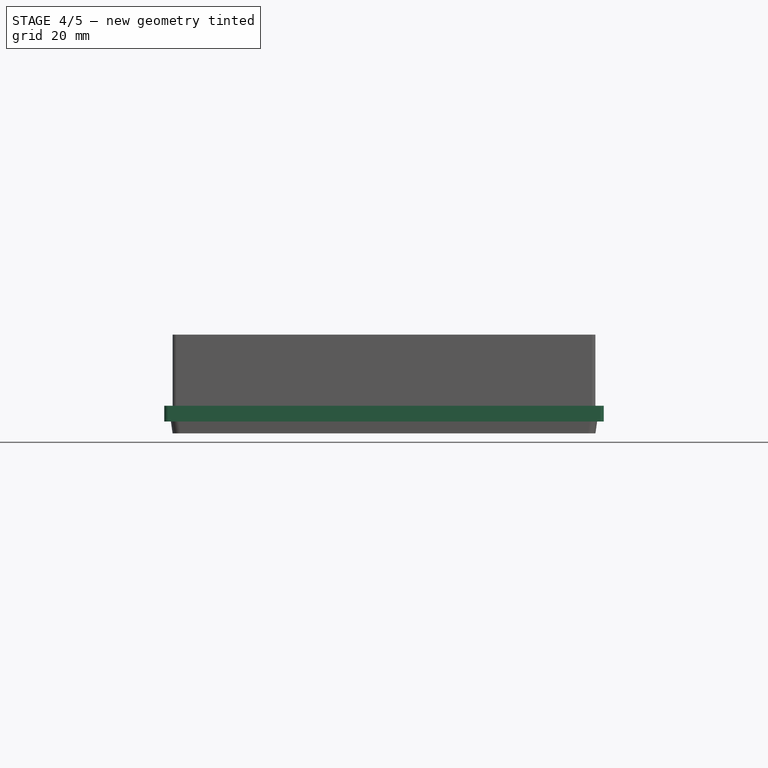
[diagram: stage 4 of 5 — front view after this stage's code; geometry added in this stage tinted green]
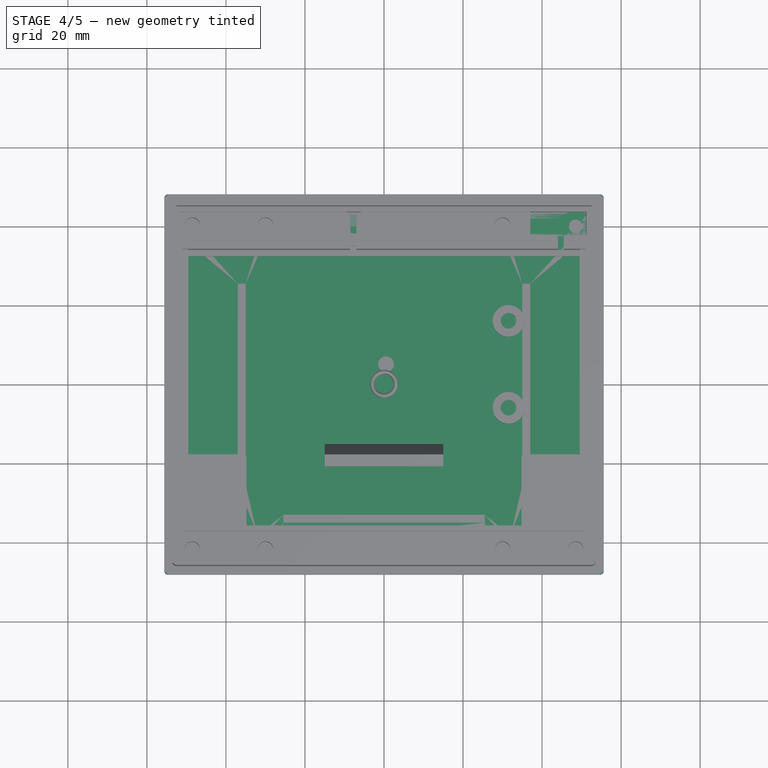
[diagram: stage 4 of 5 — top view after this stage's code; geometry added in this stage tinted green]
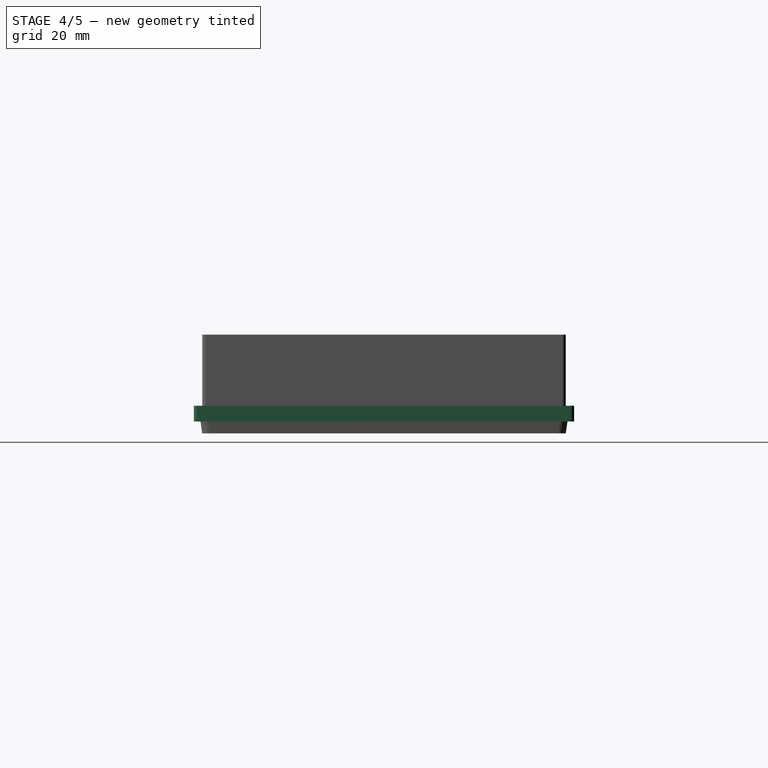
[diagram: stage 4 of 5 — right view after this stage's code; geometry added in this stage tinted green]
FEATURE [Sketcher::SketchObject] Sketch030  label="LargeStrapHolderBaseSketch"
  ArcFitTolerance = 1e-06
  AttachmentSupport = -> [XY_Plane008]
  FullyConstrained = true
  MakeInternals = false
  MapMode = 5
  expr: Constraints[31] = <<sheet>>.StrapSlotWidth
  expr: Constraints[33] = <<sheet>>.StrapSlotLength
  expr: Constraints[36] = <<sheet>>.StrapSlotWidth
  expr: Constraints[38] = <<sheet>>.StrapSlotLength
  expr: Constraints[64] = <<sheet>>.LargeBoxWidth - 2 mm
  expr: Constraints[65] = <<sheet>>.LargeBoxLength
  expr: Constraints[66] = <<sheet>>.StrapMountDia / 2
  expr: Constraints[68] = <<sheet>>.LargeBoxWidth / 2
  sketch-geometry (27):
    g0: GeomPoint [constr] X=0 Y=0 Z=0
    g1: LineSegment StartX=-25.5 StartY=35 StartZ=0 EndX=-25.5 EndY=33 EndZ=0
    g2: LineSegment StartX=-25.5 StartY=33 StartZ=0 EndX=25.5 EndY=33 EndZ=0
    g3: LineSegment StartX=25.5 StartY=33 StartZ=0 EndX=25.5 EndY=35 EndZ=0
    g4: LineSegment StartX=25.5 StartY=35 StartZ=0 EndX=-25.5 EndY=35 EndZ=0
    g5: LineSegment StartX=-25.5 StartY=-33 StartZ=0 EndX=-25.5 EndY=-35 EndZ=0
    g6: LineSegment StartX=-25.5 StartY=-35 StartZ=0 EndX=25.5 EndY=-35 EndZ=0
    g7: LineSegment StartX=25.5 StartY=-35 StartZ=0 EndX=25.5 EndY=-33 EndZ=0
    g8: LineSegment StartX=25.5 StartY=-33 StartZ=0 EndX=-25.5 EndY=-33 EndZ=0
    g9: LineSegment StartX=35 StartY=25.5 StartZ=0 EndX=35 EndY=-25.5 EndZ=0
    g10: LineSegment StartX=35 StartY=-25.5 StartZ=0 EndX=37 EndY=-25.5 EndZ=0
    g11: LineSegment StartX=37 StartY=-25.5 StartZ=0 EndX=37 EndY=25.5 EndZ=0
    g12: LineSegment StartX=37 StartY=25.5 StartZ=0 EndX=35 EndY=25.5 EndZ=0
    g13: LineSegment StartX=-37 StartY=25.5 StartZ=0 EndX=-37 EndY=-25.5 EndZ=0
    g14: LineSegment StartX=-37 StartY=-25.5 StartZ=0 EndX=-35 EndY=-25.5 EndZ=0
    g15: LineSegment StartX=-35 StartY=-25.5 StartZ=0 EndX=-35 EndY=25.5 EndZ=0
    g16: LineSegment StartX=-35 StartY=25.5 StartZ=0 EndX=-37 EndY=25.5 EndZ=0
    g17: LineSegment StartX=-53.5 StartY=40 StartZ=0 EndX=-53.5 EndY=-42 EndZ=0
    g18: LineSegment StartX=-49.5 StartY=-46 StartZ=0 EndX=49.5 EndY=-46 EndZ=0
    g19: LineSegment StartX=53.5 StartY=-42 StartZ=0 EndX=53.5 EndY=40 EndZ=0
    g20: LineSegment StartX=49.5 StartY=44 StartZ=0 EndX=-49.5 EndY=44 EndZ=0
    g21: ArcOfCircle CenterX=-49.5 CenterY=40 CenterZ=0 NormalX=0 NormalY=0 NormalZ=1 AngleXU=0 Radius=4 StartAngle=1.5708 EndAngle=3.14159
    g22: ArcOfCircle CenterX=-49.5 CenterY=-42 CenterZ=0 NormalX=0 NormalY=0 NormalZ=1 AngleXU=0 Radius=4 StartAngle=3.14159 EndAngle=4.71239
    g23: ArcOfCircle CenterX=49.5 CenterY=-42 CenterZ=0 NormalX=0 NormalY=0 NormalZ=1 AngleXU=0 Radius=4 StartAngle=4.71239 EndAngle=6.28319
    g24: ArcOfCircle CenterX=49.5 CenterY=40 CenterZ=0 NormalX=0 NormalY=0 NormalZ=1 AngleXU=0 Radius=4 StartAngle=7e-16 EndAngle=1.5708
    g25: GeomPoint [constr] X=-53.5 Y=44 Z=0
    g26: GeomPoint [constr] X=53.5 Y=-46 Z=0
  constraints (69):
    c: Coincident(g0,g-1)
    c: Coincident(g1,g2)
    c: Coincident(g2,g3)
    c: Coincident(g3,g4)
    c: Coincident(g4,g1)
    c: Vertical(g1)
    c: Vertical(g3)
    c: Horizontal(g2)
    c: Coincident(g5,g6)
    c: Coincident(g6,g7)
    c: Coincident(g7,g8)
    c: Coincident(g8,g5)
    c: Vertical(g5)
    c: Vertical(g7)
    c: Horizontal(g6)
    c: Horizontal(g8)
    c: Coincident(g9,g10)
    c: Coincident(g10,g11)
    c: Coincident(g11,g12)
    c: Coincident(g12,g9)
    c: Vertical(g11)
    c: Horizontal(g10)
    c: Horizontal(g12)
    c: Coincident(g13,g14)
    c: Coincident(g14,g15)
    c: Coincident(g15,g16)
    c: Coincident(g16,g13)
    c: Vertical(g13)
    c: Horizontal(g14)
    c: Horizontal(g16)
    c: Symmetric(g15,g14,g-1)
    c: Distance(g12,g12) = 2
    c: Equal(g12,g16)
    c: DistanceY(g11,g11) = 51
    c: Equal(g15,g11)
    c: Symmetric(g9,g9,g-1)
    c: DistanceY(g2,g3) = 2
    c: Equal(g3,g7)
    c: DistanceX(g4,g4) = 51
    c: Equal(g4,g8)
    c: Vertical(g1,g5)
    c: DistanceX(g14,g9) = 70
    c: DistanceX(g14,g0) = 35
    c: DistanceY(g0,g1) = 33
    c: DistanceY(g7,g2) = 66
    c: Symmetric(g1,g3,g-2)
    c: Tangent(g17,g21) = -1.5708
    c: Tangent(g17,g22) = -1.5708
    c: Tangent(g18,g22) = -1.5708
    c: Tangent(g18,g23) = -1.5708
    c: Tangent(g19,g23) = -1.5708
    c: Tangent(g19,g24) = -1.5708
    c: Tangent(g20,g24) = -1.5708
    c: Tangent(g20,g21) = -1.5708
    c: Vertical(g17)
    c: Vertical(g19)
    c: Horizontal(g20)
    c: Equal(g21,g22)
    c: Equal(g22,g23)
    c: Equal(g23,g24)
    c: PointOnObject(g25,g17)
    c: PointOnObject(g25,g20)
    c: PointOnObject(g26,g18)
    c: PointOnObject(g26,g19)
    c: DistanceY(g26,g25) = 90
    c: DistanceX(g25,g26) = 107
    c: Radius(g21) = 4
    c: Symmetric(g18,g18,g-2)
    c: DistanceY(g18,g0) = 46
FEATURE [PartDesign::Pad] Pad018  label="LargeStrapHolderBase"
  Direction = (0,0,1)
  Length = 1.5
  Length2 = 10
  Profile = -> Sketch030
  ReferenceAxis = -> Sketch030 [N_Axis]
  Suppressed = false
  Type = 0
FEATURE [Sketcher::SketchObject] Sketch031  label="LargeStrapHolderStandoffsSketch"
  ArcFitTolerance = 1e-06
  AttachmentSupport = -> [XY_Plane008]
  FullyConstrained = true
  MakeInternals = false
  MapMode = 5
  expr: Constraints[10] = <<sheet>>.LargeBoxLength
  expr: Constraints[11] = <<sheet>>.LargeBoxWidth
  expr: Constraints[23] = <<sheet>>.M3ThoughHoleDia
  expr: Constraints[29] = <<sheet>>.StrapMountDia
  expr: Constraints[33] = <<sheet>>.WallWidthAntennaSize / 2
  expr: Constraints[34] = <<sheet>>.StrapSpaceDistance
  expr: Constraints[38] = <<sheet>>.WallWithLengthSize / 2
  expr: Constraints[39] = <<sheet>>.WallWithLengthSize / 2
  expr: Constraints[45] = <<sheet>>.WallWithLengthSize / 2
  sketch-geometry (21):
    g0: LineSegment [constr] StartX=53.5 StartY=-46 StartZ=0 EndX=53.5 EndY=46 EndZ=0
    g1: LineSegment [constr] StartX=53.5 StartY=46 StartZ=0 EndX=-53.5 EndY=46 EndZ=0
    g2: LineSegment [constr] StartX=-53.5 StartY=46 StartZ=0 EndX=-53.5 EndY=-46 EndZ=0
    g3: LineSegment [constr] StartX=-53.5 StartY=-46 StartZ=0 EndX=53.5 EndY=-46 EndZ=0
    g4: GeomPoint [constr] X=0 Y=0 Z=0
    g5: Circle CenterX=-48.5 CenterY=40 CenterZ=0 NormalX=0 NormalY=0 NormalZ=1 AngleXU=0 Radius=4
    g6: Circle CenterX=-30 CenterY=40 CenterZ=0 NormalX=0 NormalY=0 NormalZ=1 AngleXU=0 Radius=4
    g7: Circle CenterX=30 CenterY=40 CenterZ=0 NormalX=0 NormalY=0 NormalZ=1 AngleXU=0 Radius=4
    g8: Circle CenterX=30 CenterY=-41 CenterZ=0 NormalX=0 NormalY=0 NormalZ=1 AngleXU=0 Radius=4
    g9: Circle CenterX=-30 CenterY=-41 CenterZ=0 NormalX=0 NormalY=0 NormalZ=1 AngleXU=0 Radius=4
    g10: Circle CenterX=-48.5 CenterY=-41 CenterZ=0 NormalX=0 NormalY=0 NormalZ=1 AngleXU=0 Radius=4
    g11: Circle CenterX=-48.5 CenterY=-41 CenterZ=0 NormalX=0 NormalY=0 NormalZ=1 AngleXU=0 Radius=1.6
    g12: Circle CenterX=-30 CenterY=-41 CenterZ=0 NormalX=0 NormalY=0 NormalZ=1 AngleXU=0 Radius=1.6
    g13: Circle CenterX=30 CenterY=-41 CenterZ=0 NormalX=0 NormalY=0 NormalZ=1 AngleXU=0 Radius=1.6
    g14: Circle CenterX=30 CenterY=40 CenterZ=0 NormalX=0 NormalY=0 NormalZ=1 AngleXU=0 Radius=1.6
    g15: Circle CenterX=-30 CenterY=40 CenterZ=0 NormalX=0 NormalY=0 NormalZ=1 AngleXU=0 Radius=1.6
    g16: Circle CenterX=-48.5 CenterY=40 CenterZ=0 NormalX=0 NormalY=0 NormalZ=1 AngleXU=0 Radius=1.6
    g17: Circle CenterX=48.5 CenterY=-41 CenterZ=0 NormalX=0 NormalY=0 NormalZ=1 AngleXU=0 Radius=4
    g18: Circle CenterX=48.5 CenterY=-41 CenterZ=0 NormalX=0 NormalY=0 NormalZ=1 AngleXU=0 Radius=1.6
    g19: Circle CenterX=48.5 CenterY=40 CenterZ=0 NormalX=0 NormalY=0 NormalZ=1 AngleXU=0 Radius=1.6
    g20: Circle CenterX=48.5 CenterY=40 CenterZ=0 NormalX=0 NormalY=0 NormalZ=1 AngleXU=0 Radius=4
  constraints (51):
    c: Coincident(g0,g1)
    c: Coincident(g1,g2)
    c: Coincident(g2,g3)
    c: Coincident(g3,g0)
    c: Vertical(g0)
    c: Vertical(g2)
    c: Horizontal(g1)
    c: Horizontal(g3)
    c: Symmetric(g2,g0,g4)
    c: Coincident(g4,g-1)
    c: DistanceX(g1,g1) = 107
    c: DistanceY(g0,g0) = 92
    c: Coincident(g11,g10)
    c: Coincident(g12,g9)
    c: Coincident(g13,g8)
    c: Coincident(g14,g7)
    c: Coincident(g15,g6)
    c: Coincident(g16,g5)
    c: Equal(g16,g15)
    c: Equal(g16,g14)
    c: Equal(g16,g13)
    c: Equal(g16,g12)
    c: Equal(g16,g11)
    c: Diameter(g16) = 3.2
    c: Equal(g10,g9)
    c: Equal(g10,g8)
    c: Equal(g10,g7)
    c: Equal(g10,g6)
    c: Equal(g10,g5)
    c: Diameter(g10) = 8
    c: Horizontal(g5,g6)
    c: Horizontal(g10,g9)
    c: Horizontal(g9,g8)
    c: DistanceY(g5,g1) = 6
    c: DistanceX(g6,g7) = 60
    c: Vertical(g7,g8)
    c: Vertical(g9,g6)
    c: Vertical(g10,g5)
    c: DistanceY(g2,g10) = 5
    c: DistanceX(g2,g10) = 5
    c: Coincident(g18,g17)
    c: Symmetric(g6,g7,g-2)
    c: Equal(g17,g10)
    c: Equal(g18,g16)
    c: Horizontal(g8,g17)
    c: DistanceX(g17,g0) = 5
    c: Coincident(g20,g19)
    c: Equal(g19,g16)
    c: Equal(g20,g10)
    c: Vertical(g17,g19)
    c: Horizontal(g7,g19)
FEATURE [PartDesign::Pad] Pad019  label="LargeStrapHolderStandoffs"
  BaseFeature = -> Pad018
  Direction = (0,0,1)
  Length = 2.7
  Length2 = 10
  Profile = -> Sketch031
  ReferenceAxis = -> Sketch031 [N_Axis]
  Suppressed = false
  Type = 0
FEATURE [PartDesign::Hole] Hole  label="LargeStrapHolderScrewHoles"
  BaseFeature = -> Pad019
  CustomThreadClearance = 0
  Depth = 25
  DepthType = 0
  Diameter = 3.4
  DrillForDepth = false
  DrillPoint = 1
  DrillPointAngle = 118
  HoleCutCountersinkAngle = 90
  HoleCutCustomValues = false
  HoleCutDepth = 0
  HoleCutDiameter = 6.7
  HoleCutType = 4
  ModelThread = false
  Profile = -> Sketch031
  Reversed = true
  Suppressed = false
  Tapered = false
  TaperedAngle = 90
  ThreadClass = 0
  ThreadDepth = 25
  ThreadDepthType = 0
  ThreadDirection = 0
  ThreadFit = 0
  ThreadSize = 9
  ThreadType = 2
  Threaded = false
  UseCustomThreadClearance = false
FEATURE [Sketcher::SketchObject] Sketch047  label="LargeLidBaseSketch001"
  ArcFitTolerance = 1e-06
  AttachmentSupport = -> [XY_Plane013]
  FullyConstrained = true
  MakeInternals = false
  MapMode = 5
  expr: Constraints[19] = <<sheet>>.LargeLidLength + 2 mm
  expr: Constraints[20] = <<sheet>>.LargeLidWidth + 2 mm
  expr: Constraints[21] = <<sheet>>.BoxCornerRadius
  sketch-geometry (10):
    g0: LineSegment StartX=-55.625 StartY=47.125 StartZ=0 EndX=-55.625 EndY=-47.125 EndZ=0
    g1: LineSegment StartX=-54.625 StartY=-48.125 StartZ=0 EndX=54.625 EndY=-48.125 EndZ=0
    g2: LineSegment StartX=55.625 StartY=-47.125 StartZ=0 EndX=55.625 EndY=47.125 EndZ=0
    g3: LineSegment StartX=54.625 StartY=48.125 StartZ=0 EndX=-54.625 EndY=48.125 EndZ=0
    g4: ArcOfCircle CenterX=-54.625 CenterY=47.125 CenterZ=0 NormalX=0 NormalY=0 NormalZ=1 AngleXU=0 Radius=1 StartAngle=1.5708 EndAngle=3.14159
    g5: ArcOfCircle CenterX=-54.625 CenterY=-47.125 CenterZ=0 NormalX=0 NormalY=0 NormalZ=1 AngleXU=0 Radius=1 StartAngle=3.14159 EndAngle=4.71239
    g6: ArcOfCircle CenterX=54.625 CenterY=-47.125 CenterZ=0 NormalX=0 NormalY=0 NormalZ=1 AngleXU=0 Radius=1 StartAngle=4.71239 EndAngle=6.28319
    g7: ArcOfCircle CenterX=54.625 CenterY=47.125 CenterZ=0 NormalX=0 NormalY=0 NormalZ=1 AngleXU=0 Radius=1 StartAngle=4.88e-14 EndAngle=1.5708
    g8: GeomPoint [constr] X=55.625 Y=-48.125 Z=0
    g9: GeomPoint [constr] X=0 Y=0 Z=0
  constraints (22):
    c: Tangent(g0,g4) = -1.5708
    c: Tangent(g0,g5) = -1.5708
    c: Tangent(g1,g5) = -1.5708
    c: Tangent(g1,g6) = -1.5708
    c: Tangent(g2,g6) = -1.5708
    c: Tangent(g2,g7) = -1.5708
    c: Tangent(g3,g7) = -1.5708
    c: Tangent(g3,g4) = -1.5708
    c: Vertical(g0)
    c: Vertical(g2)
    c: Horizontal(g1)
    c: Horizontal(g3)
    c: Equal(g4,g5)
    c: Equal(g5,g6)
    c: Equal(g6,g7)
    c: Symmetric(g2,g0,g9)
    c: PointOnObject(g8,g1)
    c: PointOnObject(g8,g2)
    c: Coincident(g9,g-1)
    c: DistanceX(g0,g2) = 111.25
    c: DistanceY(g1,g3) = 96.25
    c: Radius(g4) = 1
FEATURE [PartDesign::Pad] Pad030  label="LargeLidBase001"
  Direction = (0,0,1)
  Length = 1
  Length2 = 10
  Profile = -> Sketch047
  ReferenceAxis = -> Sketch047 [N_Axis]
  Suppressed = false
  Type = 0
  expr: Length = <<sheet>>.LidBottomHeight
FEATURE [Sketcher::SketchObject] Sketch048  label="LargeLidWallSketch001"
  ArcFitTolerance = 1e-06
  AttachmentSupport = -> [XY_Plane013]
  FullyConstrained = true
  MakeInternals = false
  MapMode = 5
  expr: Constraints[19] = <<sheet>>.LargeLidLength + 2 mm
  expr: Constraints[20] = <<sheet>>.LargeLidWidth + 2 mm
  expr: Constraints[42] = <<sheet>>.LidWallAroundSides
  expr: Constraints[43] = <<sheet>>.LidWallAroundSides
  sketch-geometry (20):
    g0: LineSegment StartX=-55.625 StartY=47.125 StartZ=0 EndX=-55.625 EndY=-47.125 EndZ=0
    g1: LineSegment StartX=-54.625 StartY=-48.125 StartZ=0 EndX=54.625 EndY=-48.125 EndZ=0
    g2: LineSegment StartX=55.625 StartY=-47.125 StartZ=0 EndX=55.625 EndY=47.125 EndZ=0
    g3: LineSegment StartX=54.625 StartY=48.125 StartZ=0 EndX=-54.625 EndY=48.125 EndZ=0
    g4: ArcOfCircle CenterX=-54.625 CenterY=47.125 CenterZ=0 NormalX=0 NormalY=0 NormalZ=1 AngleXU=0 Radius=1 StartAngle=1.5708 EndAngle=3.14159
    g5: ArcOfCircle CenterX=-54.625 CenterY=-47.125 CenterZ=0 NormalX=0 NormalY=0 NormalZ=1 AngleXU=0 Radius=1 StartAngle=3.14159 EndAngle=4.71239
    g6: ArcOfCircle CenterX=54.625 CenterY=-47.125 CenterZ=0 NormalX=0 NormalY=0 NormalZ=1 AngleXU=0 Radius=1 StartAngle=4.71239 EndAngle=6.28319
    g7: ArcOfCircle CenterX=54.625 CenterY=47.125 CenterZ=0 NormalX=0 NormalY=0 NormalZ=1 AngleXU=0 Radius=1 StartAngle=-1.8e-15 EndAngle=1.5708
    g8: GeomPoint [constr] X=55.625 Y=-48.125 Z=0
    g9: GeomPoint [constr] X=0 Y=0 Z=0
    g10: LineSegment StartX=-54.625 StartY=46.125 StartZ=0 EndX=-54.625 EndY=-46.125 EndZ=0
    g11: LineSegment StartX=-53.625 StartY=-47.125 StartZ=0 EndX=53.625 EndY=-47.125 EndZ=0
    g12: LineSegment StartX=54.625 StartY=-46.125 StartZ=0 EndX=54.625 EndY=46.125 EndZ=0
    g13: LineSegment StartX=53.625 StartY=47.125 StartZ=0 EndX=-53.625 EndY=47.125 EndZ=0
    g14: ArcOfCircle CenterX=-53.625 CenterY=46.125 CenterZ=0 NormalX=0 NormalY=0 NormalZ=1 AngleXU=0 Radius=1 StartAngle=1.5708 EndAngle=3.14159
    g15: ArcOfCircle CenterX=-53.625 CenterY=-46.125 CenterZ=0 NormalX=0 NormalY=0 NormalZ=1 AngleXU=0 Radius=1 StartAngle=3.14159 EndAngle=4.71239
    g16: ArcOfCircle CenterX=53.625 CenterY=-46.125 CenterZ=0 NormalX=0 NormalY=0 NormalZ=1 AngleXU=0 Radius=1 StartAngle=4.71239 EndAngle=6.28319
    g17: ArcOfCircle CenterX=53.625 CenterY=46.125 CenterZ=0 NormalX=0 NormalY=0 NormalZ=1 AngleXU=0 Radius=1 StartAngle=8e-16 EndAngle=1.5708
    g18: GeomPoint [constr] X=-54.625 Y=47.125 Z=0
    g19: GeomPoint [constr] X=54.625 Y=-47.125 Z=0
  constraints (45):
    c: Tangent(g0,g4) = -1.5708
    c: Tangent(g0,g5) = -1.5708
    c: Tangent(g1,g5) = -1.5708
    c: Tangent(g1,g6) = -1.5708
    c: Tangent(g2,g6) = -1.5708
    c: Tangent(g2,g7) = -1.5708
    c: Tangent(g3,g7) = -1.5708
    c: Tangent(g3,g4) = -1.5708
    c: Vertical(g0)
    c: Vertical(g2)
    c: Horizontal(g1)
    c: Horizontal(g3)
    c: Equal(g4,g5)
    c: Equal(g5,g6)
    c: Equal(g6,g7)
    c: Symmetric(g2,g0,g9)
    c: PointOnObject(g8,g1)
    c: PointOnObject(g8,g2)
    c: Coincident(g9,g-1)
    c: DistanceX(g0,g2) = 111.25
    c: DistanceY(g1,g3) = 96.25
    c: Tangent(g10,g14) = -1.5708
    c: Tangent(g10,g15) = -1.5708
    c: Tangent(g11,g15) = -1.5708
    c: Tangent(g11,g16) = -1.5708
    c: Tangent(g12,g16) = -1.5708
    c: Tangent(g12,g17) = -1.5708
    c: Tangent(g13,g17) = -1.5708
    c: Tangent(g13,g14) = -1.5708
    c: Vertical(g10)
    c: Vertical(g12)
    c: Horizontal(g11)
    c: Horizontal(g13)
    c: Equal(g14,g15)
    c: Equal(g15,g16)
    c: Equal(g16,g17)
    c: PointOnObject(g18,g10)
    c: PointOnObject(g18,g13)
    c: PointOnObject(g19,g11)
    c: PointOnObject(g19,g12)
    c: Equal(g4,g14)
    c: Symmetric(g15,g17,g9)
    c: DistanceY(g13,g3) = 1
    c: DistanceX(g12,g2) = 1
    c: Radius(g14) = 1
FEATURE [PartDesign::Pad] Pad031  label="LargeLidWall001"
  BaseFeature = -> Pad030
  Direction = (0,0,1)
  Length = 3
  Length2 = 10
  Profile = -> Sketch048
  ReferenceAxis = -> Sketch048 [N_Axis]
  Reversed = true
  Suppressed = false
  Type = 0
FEATURE [Sketcher::SketchObject] Sketch049  label="LargeLidHoleSketch001"
  ArcFitTolerance = 1e-06
  AttachmentSupport = -> [XY_Plane013]
  FullyConstrained = true
  MakeInternals = false
  MapMode = 5
  expr: Constraints[13] = <<sheet>>.M3ThoughHoleDia
  expr: Constraints[20] = <<sheet>>.WallWithLengthSize / 2
  expr: Constraints[21] = <<sheet>>.WallWithLengthSize / 2
  expr: Constraints[22] = <<sheet>>.WallWidthAntennaSize / 2
  expr: Constraints[24] = <<sheet>>.StrapSpaceDistance
  expr: Constraints[30] = <<sheet>>.WallWithLengthSize / 2
  expr: Constraints[8] = <<sheet>>.LargeBoxLength
  expr: Constraints[9] = <<sheet>>.LargeBoxWidth
  sketch-geometry (11):
    g0: LineSegment [constr] StartX=-53.5 StartY=46 StartZ=0 EndX=-53.5 EndY=-46 EndZ=0
    g1: LineSegment [constr] StartX=-53.5 StartY=-46 StartZ=0 EndX=53.5 EndY=-46 EndZ=0
    g2: LineSegment [constr] StartX=53.5 StartY=-46 StartZ=0 EndX=53.5 EndY=46 EndZ=0
    g3: LineSegment [constr] StartX=53.5 StartY=46 StartZ=0 EndX=-53.5 EndY=46 EndZ=0
    g4: Circle CenterX=-48.5 CenterY=40 CenterZ=0 NormalX=0 NormalY=0 NormalZ=1 AngleXU=0 Radius=1.6
    g5: Circle CenterX=-30 CenterY=40 CenterZ=0 NormalX=0 NormalY=0 NormalZ=1 AngleXU=0 Radius=1.6
    g6: Circle CenterX=30 CenterY=40 CenterZ=0 NormalX=0 NormalY=0 NormalZ=1 AngleXU=0 Radius=1.6
    g7: Circle CenterX=-30 CenterY=-41 CenterZ=0 NormalX=0 NormalY=0 NormalZ=1 AngleXU=0 Radius=1.6
    g8: Circle CenterX=-48.5 CenterY=-41 CenterZ=0 NormalX=0 NormalY=0 NormalZ=1 AngleXU=0 Radius=1.6
    g9: Circle CenterX=30 CenterY=-41 CenterZ=0 NormalX=0 NormalY=0 NormalZ=1 AngleXU=0 Radius=1.6
    g10: Circle CenterX=48.5 CenterY=-41 CenterZ=0 NormalX=0 NormalY=0 NormalZ=1 AngleXU=0 Radius=1.6
  constraints (31):
    c: Coincident(g0,g1)
    c: Coincident(g1,g2)
    c: Coincident(g2,g3)
    c: Coincident(g3,g0)
    c: Vertical(g0)
    c: Vertical(g2)
    c: Horizontal(g3)
    c: Symmetric(g2,g0,g-1)
    c: DistanceX(g3,g3) = 107
    c: DistanceY(g2,g2) = 92
    c: Horizontal(g9,g7)
    c: Horizontal(g7,g8)
    c: Horizontal(g4,g5)
    c: Diameter(g8) = 3.2
    c: Equal(g8,g7)
    c: Equal(g7,g9)
    c: Equal(g8,g4)
    c: Equal(g4,g5)
    c: Equal(g5,g6)
    c: Vertical(g8,g4)
    c: DistanceY(g0,g8) = 5
    c: DistanceX(g0,g8) = 5
    c: DistanceY(g4,g0) = 6
    c: Horizontal(g1)
    c: DistanceX(g5,g6) = 60
    c: Vertical(g7,g5)
    c: Vertical(g6,g9)
    c: Symmetric(g6,g5,g-2)
    c: Horizontal(g10,g9)
    c: Equal(g10,g8)
    c: DistanceX(g10,g1) = 5
FEATURE [PartDesign::Pocket] Pocket019  label="LargeLidHoles001"
  BaseFeature = -> Pad031
  Direction = (0,0,-1)
  Length = 5
  Length2 = 5
  Profile = -> Sketch049
  ReferenceAxis = -> Sketch049 [N_Axis]
  Reversed = true
  Suppressed = false
  Type = 0
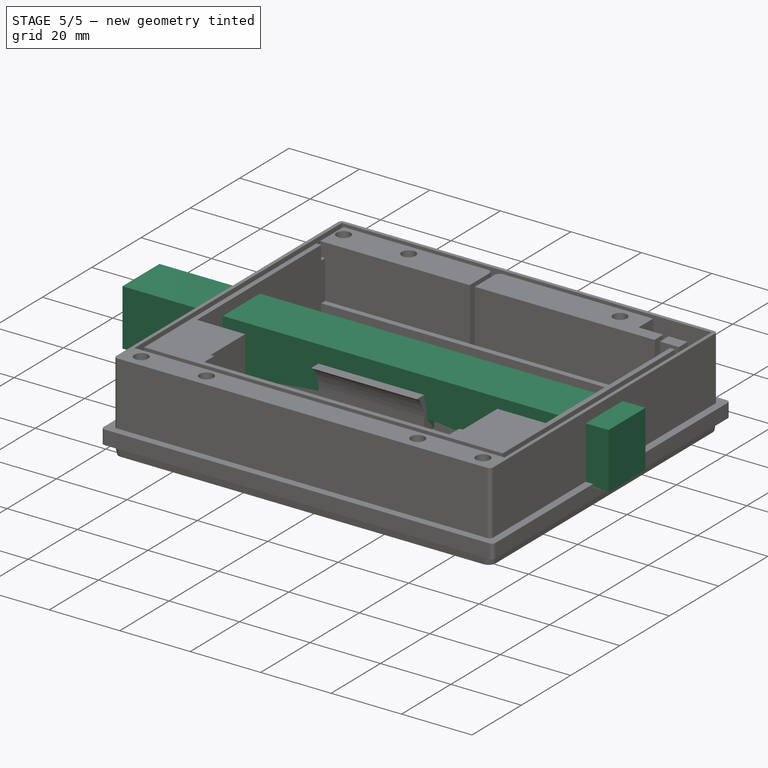
[diagram: stage 5 of 5 — iso view after this stage's code; geometry added in this stage tinted green]
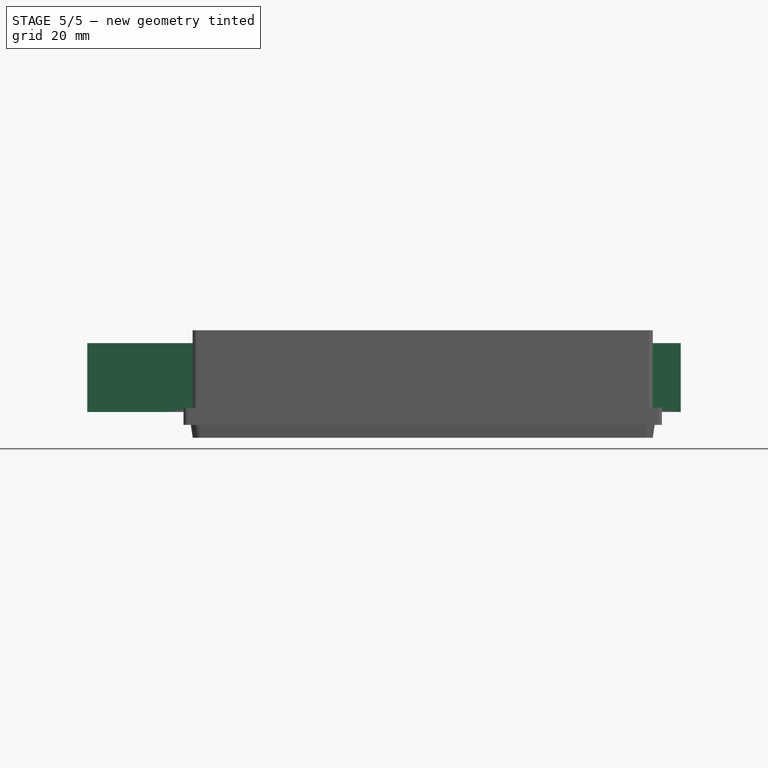
[diagram: stage 5 of 5 — front view after this stage's code; geometry added in this stage tinted green]
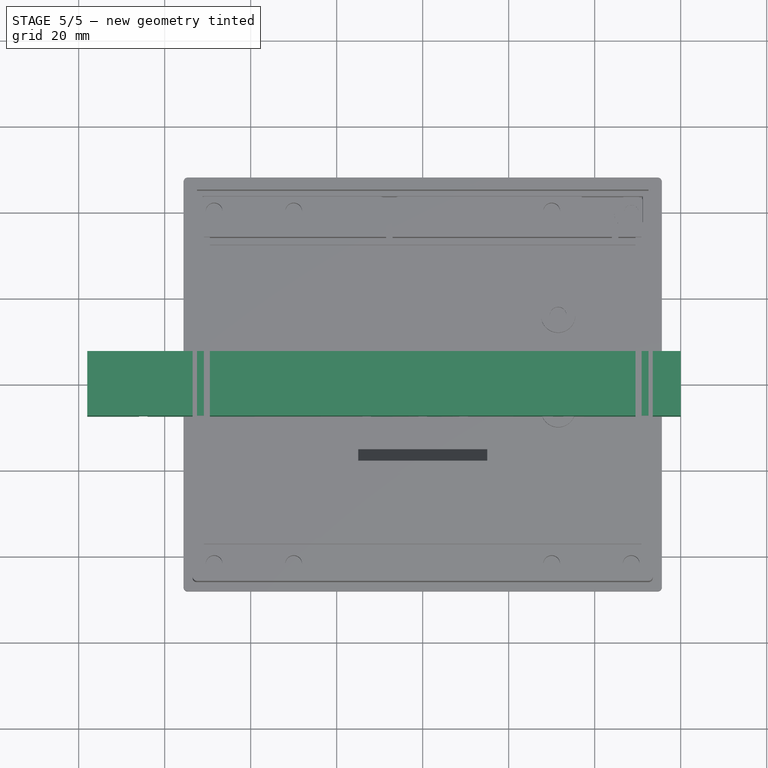
[diagram: stage 5 of 5 — top view after this stage's code; geometry added in this stage tinted green]
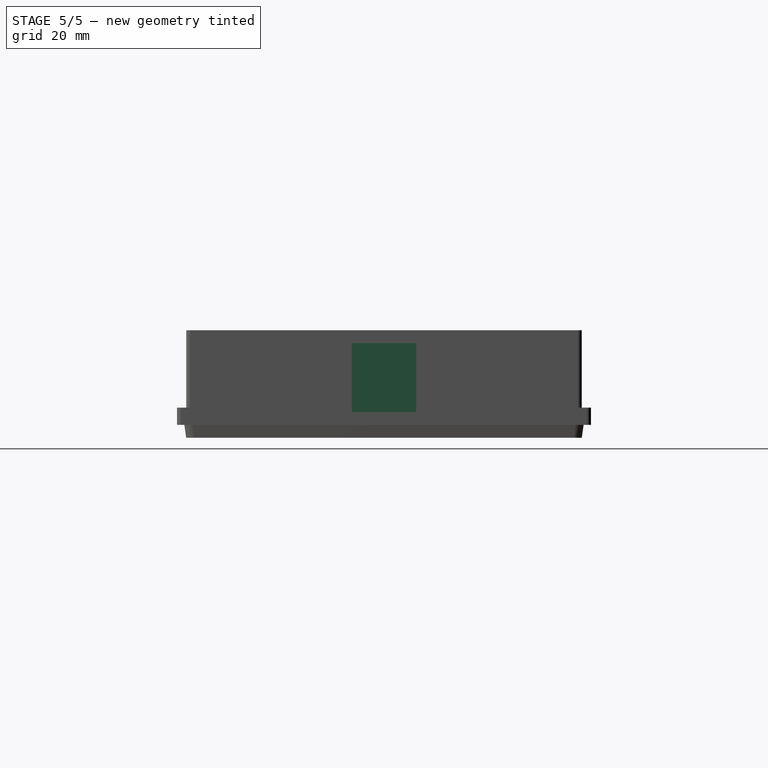
[diagram: stage 5 of 5 — right view after this stage's code; geometry added in this stage tinted green]
FEATURE [Spreadsheet::Sheet] Spreadsheet  label="sheet"
  cells = A1='Components; D1='None-Component sizes; G1='Other; N1='Notes/TODO; N2='The Lora antenna can/must be glued, so we need to remove that fron area and make there a thin wall. Thin kabout where the lid sits and how the cable should run; A3='Small Molex Lora Antenna Width; B3(AntSmallLoraWidth)==10 mm; D3='M3 Insert Hole Dia; E3(InsetDiaM3)==3.9 mm; G3='Small Box Length; H3(SmallBoxLength)==B4 + 2 * E20 + B14 + E23; N3='It would be great if we can turn the GPS receiver on it's side.; A4='Small Molex Lora Antenna Length; B4(AntSmallLoraLength)==80 mm; D4='M2.5 Insert Hole DIa; E4(InsertDiaM2_5)==3.9 mm; G4='Small Box Width; H4(SmallBoxWidth)==92 mm; N4='The camfer area needs to be smaller and only around the solar panel. We want the area with antenna's to be as clear as possibe.; A5='Small Molex Lora Antenna Height; B5(AntSmallLoraHeight)==1.4 mm; D5='M3 Though Hall; E5(M3ThoughHoleDia)==3.2 mm; G5='Small Box Height; H5(SmallBoxHeight)==E8 + H6; D6='Insert Hole Depth; E6(InsertDepth)==8 mm; G6='Box Bottom Height; H6(BoxBottomHeight)==1 mm; A7='Large Molex Lora Antenna Width Sticker; B7(AntLargeLoraWidth)==12.5 mm; D7='Box Corner radius; E7(BoxCornerRadius)==1 mm; A8='Large Molex Lora Antenna Length Sticker; B8(AntLargeLoraLength)==87.5 mm; D8='Box Internal Height; E8(BoxInternalHeight)==18 mm; G8='Medium Lid Width; H8(SmallLidWidth)==H4 + 2 * E14; A9='Large Molex Lora Antenna Width (white); B9='TBD; D9='Wall Width Antenna Size; E9(WallWidthAntennaSize)==12 mm; G9='Medium Lid Length; H9(SmallLidLength)==H3 + 2 * E14; A10='Large Molex Lora Antenna Length (white); B10==100 mm; D10='Wall Width Length Size; E10(WallWithLengthSize)==10 mm; G10='Lid bottom Height; H10(LidBottomHeight)==1 mm; A11='Large Molex Lora Antenna Height; B11(AntLargeLoraHeight)==1.6 mm; D11='Wall Width Other; E11(WallWidthOther)==4 mm; G11='Lid Side Wall height; H11(LidSideWallheight)==4 mm; D12='Wall Battery Box; E12(WallBatteryBox)==0.8 mm; D13='Antenna Wire width; E13(AntWireWidth)==1.5 mm; G13='Large Box Length; H13(LargeBoxLength)==B8 + 2 * E20 + B14 + E23; A14='GPS Antenna Width; B14==15.5 mm; D14='Lid Wall Around sides; E14(LidWallAroundSides)==1 mm; G14='Large Box Width; H14(LargeBoxWidth)==92 mm; A15='GPS Antenna Height; B15(AntGPSHeight)==7.5 mm; D15='Lid Wall Margin; E15==0.25 mm; G15='Large Box Height; H15(LargeBoxHeight)==E8 + H6; A16='GPS Antenna Length; B16(AntGPSLength)==15.5 mm; D16='Strap Mount Dia; E16(StrapMountDia)==8 mm; D17='Strap slot width; E17(StrapSlotWidth)==2 mm; G17='Large Lid Length; H17(LargeLidLength)==H13 + 2 * E14 + E15; D18='Strap slot length; E18(StrapSlotLength)==51 mm; G18='Large Lid width; H18(LargeLidWidth)==H14 + 2 * E14 + E15; A19='PCB Width; B19==30 mm; A20='PCB Length; B20==38 mm; D20='Wall between Lora and Side; E20(WallBetweenLoraAndSide)==1 mm; A21='PCB Width With Margin; B21==31 mm; D21='Wall Between Lora And GPS; E21(WallBetweenLoraAndGPS)==0.8 mm; A22='PCB Length with Margin; B22==39 mm; D22='Wall between GPS and Lora Antenna Wire (center); E22(WallBetweenGPSAndLoraSide)==1.5 mm; A23='PCB Height; B23==16 mm; C23='Can be 15.5mm but it's pushing it; D23='Distance between GPS and Lora Antenna; E23(DistanceGPSandLoraAnt)==2 mm; A24='PCB 2 Hole Distance; B24(PCBHoleDistance)==22 mm; A25='PCB Single Hole Distance from 2 Holes; B25(PCBHoleAwayFrom2Holes)==31 mm; D25='Battery Contact Width; E25(BatteryContactWidth)==12 mm; D26='Battery Contact Height; E26(BatteryContactHeight)==11.2 mm; D27='Battery Contact hole from spring centre; E27(BatteryContactHoleOffset)==5.75 mm; D28='Battery Contact Spring from top; E28==5 mm; D29='Battery Contact Distance Length; E29(BatteryContactDistance)==71.6 mm; A30='Battery Width; B30(BatteryWidth)==18 mm; D30='Battery Contact Hole diameter; E30(BatteryContactHoleDiameter)==1.5 mm; A31='Battery Length; B31(BatteryLength)==65 mm; A32='Battery Height; B32(BatteryHeight)==18 mm; A33='Battery Mount Distance; B33==71.6 mm; D35='Solar Panel Protection Wall; E35(SolarPanelProtectionWall)==2 mm; D37='PCB Mount Outer Diameter; E37(PCBMountDia)==8 mm; D38='PCB Mount Height; E38(PCBMountHeight)==4.5 mm; A39='Large Solar Panel Width; B39(SolarPanelLargeWidth)==81 mm; D39='PCB Mount from Side; E39(PCBMountFromSide)==25 mm; A40='Large Solar Panel Height; B40(SolarPanelLargeHeight)==2.7 mm; A41='Large Solar Panel Length; B41(SolarPanelLargeLength)==101 mm; D41='Lid Screwholes from side; E41(LidScrewHolesFromSide)==4 mm; D42='Lid Screwholes depth; E42(LidScrewHolesDepth)==12 mm; D44='Space between strap holes; E44(StrapSpaceDistance)==60 mm
FEATURE [Sketcher::SketchObject] Sketch
  ArcFitTolerance = 0
  AttachmentSupport = -> [XY_Plane]
  FullyConstrained = true
  MakeInternals = false
  MapMode = 5
  sketch-geometry (6):
    g0: LineSegment StartX=-60 StartY=7.5 StartZ=0 EndX=60 EndY=7.5 EndZ=0
    g1: LineSegment StartX=60 StartY=7.5 StartZ=0 EndX=60 EndY=-7.5 EndZ=0
    g2: LineSegment StartX=60 StartY=-7.5 StartZ=0 EndX=-60 EndY=-7.5 EndZ=0
    g3: LineSegment StartX=-60 StartY=7.5 StartZ=0 EndX=-78 EndY=7.5 EndZ=0
    g4: LineSegment StartX=-78 StartY=7.5 StartZ=0 EndX=-78 EndY=-7.5 EndZ=0
    g5: LineSegment StartX=-78 StartY=-7.5 StartZ=0 EndX=-60 EndY=-7.5 EndZ=0
  constraints (17):
    c: Coincident(g0,g1)
    c: Coincident(g1,g2)
    c: Horizontal(g0)
    c: Horizontal(g2)
    c: Vertical(g1)
    c: Symmetric(g0,g1,g-1)
    c: DistanceY(g1,g1) = 15
    c: DistanceX(g0,g0) = 120
    c: Vertical(g0,g2)
    c: Coincident(g3,g0)
    c: Horizontal(g3)
    c: Vertical(g4)
    c: Coincident(g5,g4)
    c: Coincident(g5,g2)
    c: Horizontal(g5)
    c: Coincident(g4,g3)
    c: DistanceX(g3,g3) = 18
FEATURE [PartDesign::Pad] Pad
  Direction = (0,0,1)
  Length = 16
  Length2 = 10
  Profile = -> Sketch
  ReferenceAxis = -> Sketch [N_Axis]
  Suppressed = false
  Type = 0
FEATURE [Sketcher::SketchObject] Sketch001
  ArcFitTolerance = 0
  AttachmentSupport = -> [XY_Plane]
  ExternalGeometry = -> [Sketch]
  FullyConstrained = true
  MakeInternals = false
  MapMode = 5
  sketch-geometry (16):
    g0: LineSegment StartX=-56 StartY=6.5 StartZ=0 EndX=56 EndY=6.5 EndZ=0
    g1: LineSegment StartX=56 StartY=6.5 StartZ=0 EndX=56 EndY=5 EndZ=0
    g2: LineSegment StartX=56 StartY=5 StartZ=0 EndX=-56 EndY=5 EndZ=0
    g3: LineSegment StartX=-56 StartY=5 StartZ=0 EndX=-56 EndY=6.5 EndZ=0
    g4: LineSegment StartX=1.5 StartY=4 StartZ=0 EndX=17.5 EndY=4 EndZ=0
    g5: LineSegment StartX=17.5 StartY=4 StartZ=0 EndX=17.5 EndY=-3.5 EndZ=0
    g6: LineSegment StartX=17.5 StartY=-3.5 StartZ=0 EndX=1.5 EndY=-3.5 EndZ=0
    g7: LineSegment StartX=1.5 StartY=-3.5 StartZ=0 EndX=1.5 EndY=4 EndZ=0
    g8: LineSegment StartX=-21 StartY=4 StartZ=0 EndX=-5 EndY=4 EndZ=0
    g9: LineSegment StartX=-5 StartY=4 StartZ=0 EndX=-5 EndY=-3.5 EndZ=0
    g10: LineSegment StartX=-5 StartY=-3.5 StartZ=0 EndX=-21 EndY=-3.5 EndZ=0
    g11: LineSegment StartX=-21 StartY=-3.5 StartZ=0 EndX=-21 EndY=4 EndZ=0
    g12: LineSegment StartX=-73 StartY=6.5 StartZ=0 EndX=-57 EndY=6.5 EndZ=0
    g13: LineSegment StartX=-57 StartY=6.5 StartZ=0 EndX=-57 EndY=-1 EndZ=0
    g14: LineSegment StartX=-57 StartY=-1 StartZ=0 EndX=-73 EndY=-1 EndZ=0
    g15: LineSegment StartX=-73 StartY=-1 StartZ=0 EndX=-73 EndY=6.5 EndZ=0
  constraints (47):
    c: Coincident(g0,g1)
    c: Coincident(g1,g2)
    c: Coincident(g2,g3)
    c: Coincident(g3,g0)
    c: Horizontal(g2)
    c: Vertical(g1)
    c: Vertical(g3)
    c: DistanceX(g0,g0) = 112
    c: Symmetric(g0,g0,g-2)
    c: DistanceY(g3,g3) = 1.5
    c: DistanceY(g0,g-5) = 1
    c: Coincident(g4,g5)
    c: Coincident(g5,g6)
    c: Coincident(g6,g7)
    c: Coincident(g7,g4)
    c: Horizontal(g4)
    c: Horizontal(g6)
    c: Vertical(g5)
    c: Vertical(g7)
    c: DistanceY(g5,g5) = 7.5
    c: DistanceX(g4,g4) = 16
    c: DistanceX(g-1,g6) = 1.5
    c: DistanceY(g4,g1) = 1
    c: Coincident(g8,g9)
    c: Coincident(g9,g10)
    c: Coincident(g10,g11)
    c: Coincident(g11,g8)
    c: Horizontal(g8)
    c: Horizontal(g10)
    c: Vertical(g9)
    c: Vertical(g11)
    c: Horizontal(g8,g4)
    c: Equal(g5,g9)
    c: Equal(g4,g8)
    c: DistanceX(g9,g-1) = 5
    c: Coincident(g12,g13)
    c: Coincident(g13,g14)
    c: Coincident(g14,g15)
    c: Coincident(g15,g12)
    c: Horizontal(g12)
    c: Horizontal(g14)
    c: Vertical(g13)
    c: Vertical(g15)
    c: Equal(g5,g13)
    c: Equal(g4,g12)
    c: DistanceX(g12,g2) = 1
    c: Horizontal(g12,g0)
FEATURE [PartDesign::Pocket] Pocket
  BaseFeature = -> Pad
  Direction = (0,0,-1)
  Length = 15.5
  Length2 = 5
  Profile = -> Sketch001
  ReferenceAxis = -> Sketch001 [N_Axis]
  Reversed = true
  Suppressed = false
  Type = 0
FEATURE [Sketcher::SketchObject] Sketch002
  ArcFitTolerance = 0
  AttachmentSupport = -> [XY_Plane]
  ExternalGeometry = -> [Sketch,Sketch001]
  FullyConstrained = true
  MakeInternals = false
  MapMode = 5
  sketch-geometry (16):
    g0: LineSegment StartX=-1 StartY=5 StartZ=0 EndX=1 EndY=5 EndZ=0
    g1: LineSegment StartX=1 StartY=5 StartZ=0 EndX=1 EndY=-7.5 EndZ=0
    g2: LineSegment StartX=1 StartY=-7.5 StartZ=0 EndX=-1 EndY=-7.5 EndZ=0
    g3: LineSegment StartX=-1 StartY=-7.5 StartZ=0 EndX=-1 EndY=5 EndZ=0
    g4: LineSegment StartX=-14 StartY=-3.5 StartZ=0 EndX=-12 EndY=-3.5 EndZ=0
    g5: LineSegment StartX=-12 StartY=-3.5 StartZ=0 EndX=-12 EndY=-7.5 EndZ=0
    g6: LineSegment StartX=-12 StartY=-7.5 StartZ=0 EndX=-14 EndY=-7.5 EndZ=0
    g7: LineSegment StartX=-14 StartY=-7.5 StartZ=0 EndX=-14 EndY=-3.5 EndZ=0
    g8: LineSegment StartX=8.5 StartY=-3.5 StartZ=0 EndX=10.5 EndY=-3.5 EndZ=0
    g9: LineSegment StartX=10.5 StartY=-3.5 StartZ=0 EndX=10.5 EndY=-7.5 EndZ=0
    g10: LineSegment StartX=10.5 StartY=-7.5 StartZ=0 EndX=8.5 EndY=-7.5 EndZ=0
    g11: LineSegment StartX=8.5 StartY=-7.5 StartZ=0 EndX=8.5 EndY=-3.5 EndZ=0
    g12: LineSegment StartX=-66 StartY=-1 StartZ=0 EndX=-64 EndY=-1 EndZ=0
    g13: LineSegment StartX=-64 StartY=-1 StartZ=0 EndX=-64 EndY=-7.5 EndZ=0
    g14: LineSegment StartX=-64 StartY=-7.5 StartZ=0 EndX=-66 EndY=-7.5 EndZ=0
    g15: LineSegment StartX=-66 StartY=-7.5 StartZ=0 EndX=-66 EndY=-1 EndZ=0
  constraints (47):
    c: Coincident(g0,g1)
    c: Coincident(g1,g2)
    c: Coincident(g2,g3)
    c: Coincident(g3,g0)
    c: Horizontal(g2)
    c: Vertical(g1)
    c: Vertical(g3)
    c: PointOnObject(g0,g-8)
    c: Coincident(g4,g5)
    c: Coincident(g5,g6)
    c: Coincident(g6,g7)
    c: Coincident(g7,g4)
    c: Horizontal(g4)
    c: Horizontal(g6)
    c: Vertical(g5)
    c: Vertical(g7)
    c: PointOnObject(g4,g-6)
    c: PointOnObject(g5,g-9)
    c: Coincident(g8,g9)
    c: Coincident(g9,g10)
    c: Coincident(g10,g11)
    c: Coincident(g11,g8)
    c: Horizontal(g8)
    c: Horizontal(g10)
    c: Vertical(g9)
    c: Vertical(g11)
    c: PointOnObject(g8,g-7)
    c: PointOnObject(g9,g-9)
    c: DistanceX(g0,g0) = 2
    c: Equal(g0,g4)
    c: Equal(g0,g8)
    c: Symmetric(g0,g0,g-2)
    c: DistanceX(g-6,g4) = 7
    c: DistanceX(g8,g-7) = 7
    c: PointOnObject(g1,g-9)
    c: Coincident(g12,g13)
    c: Coincident(g13,g14)
    c: Coincident(g14,g15)
    c: Coincident(g15,g12)
    c: Horizontal(g12)
    c: Horizontal(g14)
    c: Vertical(g13)
    c: Vertical(g15)
    c: PointOnObject(g12,g-10)
    c: PointOnObject(g13,g-3)
    c: Equal(g4,g12)
    c: DistanceX(g-10,g12) = 7
FEATURE [PartDesign::Pocket] Pocket001
  BaseFeature = -> Pocket
  Direction = (0,0,-1)
  Length = 5
  Length2 = 5
  Profile = -> Sketch002
  ReferenceAxis = -> Sketch002 [N_Axis]
  Reversed = true
  Suppressed = false
  Type = 0
FEATURE [Sketcher::SketchObject] Sketch025  label="LargeBoxSolarPanelProtectorSketch"
  ArcFitTolerance = 1e-06
  AttachmentSupport = -> [Pocket010]
  FullyConstrained = true
  MakeInternals = false
  MapMode = 5
  Placement = pos=(0,0,0) rot=(1,0,0;3.14159rad)
  expr: Constraints[18] = <<sheet>>.LargeBoxLength
  expr: Constraints[19] = <<sheet>>.SolarPanelLargeWidth + <<sheet>>.SolarPanelProtectionWall
  expr: Constraints[20] = <<sheet>>.BoxCornerRadius
  expr: Constraints[29] = <<sheet>>.SolarPanelLargeWidth
  expr: Constraints[31] = <<sheet>>.LargeBoxWidth / 2
  expr: Constraints[5] = <<sheet>>.SolarPanelLargeLength
  sketch-geometry (12):
    g0: LineSegment StartX=-50.5 StartY=-36 StartZ=0 EndX=50.5 EndY=-36 EndZ=0
    g1: LineSegment StartX=50.5 StartY=-36 StartZ=0 EndX=50.5 EndY=46 EndZ=0
    g2: LineSegment StartX=-50.5 StartY=46 StartZ=0 EndX=-50.5 EndY=-36 EndZ=0
    g3: LineSegment StartX=-52.5 StartY=-37 StartZ=0 EndX=52.5 EndY=-37 EndZ=0
    g4: LineSegment StartX=53.5 StartY=-36 StartZ=0 EndX=53.5 EndY=45 EndZ=0
    g5: LineSegment StartX=-53.5 StartY=45 StartZ=0 EndX=-53.5 EndY=-36 EndZ=0
    g6: ArcOfCircle CenterX=-52.5 CenterY=-36 CenterZ=0 NormalX=0 NormalY=0 NormalZ=1 AngleXU=0 Radius=1 StartAngle=3.14159 EndAngle=4.71239
    g7: ArcOfCircle CenterX=52.5 CenterY=-36 CenterZ=0 NormalX=0 NormalY=0 NormalZ=1 AngleXU=0 Radius=1 StartAngle=4.71239 EndAngle=6.28319
    g8: ArcOfCircle CenterX=52.5 CenterY=45 CenterZ=0 NormalX=0 NormalY=0 NormalZ=1 AngleXU=0 Radius=1 StartAngle=2e-16 EndAngle=1.5708
    g9: ArcOfCircle CenterX=-52.5 CenterY=45 CenterZ=0 NormalX=0 NormalY=0 NormalZ=1 AngleXU=0 Radius=1 StartAngle=1.57081 EndAngle=3.14159
    g10: LineSegment StartX=-52.5 StartY=46 StartZ=0 EndX=-50.5 EndY=46 EndZ=0
    g11: LineSegment StartX=52.5 StartY=46 StartZ=0 EndX=50.5 EndY=46 EndZ=0
  constraints (32):
    c: Coincident(g0,g1)
    c: Coincident(g2,g0)
    c: Horizontal(g0)
    c: Vertical(g1)
    c: Vertical(g2)
    c: Distance(g1,g2) = 101
    c: Tangent(g3,g6) = -1.5708
    c: Tangent(g3,g7) = -1.5708
    c: Tangent(g4,g7) = -1.5708
    c: Tangent(g4,g8) = -1.5708
    c: Tangent(g5,g9) = -1.5708
    c: Tangent(g5,g6) = -1.5708
    c: Horizontal(g3)
    c: Vertical(g4)
    c: Vertical(g5)
    c: Equal(g6,g7)
    c: Equal(g7,g8)
    c: Equal(g8,g9)
    c: Distance(g4,g5) = 107
    c: Distance(g3,g9) = 83
    c: Radius(g7) = 1
    c: Coincident(g10,g9)
    c: Coincident(g10,g2)
    c: Horizontal(g10)
    c: Tangent(g11,g8) = -1.5708
    c: Coincident(g11,g1)
    c: Equal(g11,g10)
    c: Horizontal(g1,g2)
    c: Symmetric(g5,g4,g-2)
    c: DistanceY(g0,g5) = 81
    c: Horizontal(g11)
    c: DistanceY(g-1,g1) = 46
FEATURE [Sketcher::SketchObject] Sketch026  label="LargeBoxSolarPanelHoleSketch"
  ArcFitTolerance = 1e-06
  AttachmentSupport = -> [XY_Plane006]
  ExternalGeometry = -> [Sketch025]
  FullyConstrained = true
  MakeInternals = false
  MapMode = 5
  expr: Constraints[8] = <<sheet>>.SolarPanelLargeWidth / 2
  sketch-geometry (4):
    g0: ArcOfCircle CenterX=-10 CenterY=-4.5 CenterZ=0 NormalX=0 NormalY=0 NormalZ=1 AngleXU=0 Radius=5 StartAngle=1.5708 EndAngle=4.71239
    g1: ArcOfCircle CenterX=10 CenterY=-4.5 CenterZ=0 NormalX=0 NormalY=0 NormalZ=1 AngleXU=0 Radius=5 StartAngle=4.71239 EndAngle=7.85398
    g2: LineSegment StartX=-10 StartY=0.5 StartZ=0 EndX=10 EndY=0.5 EndZ=0
    g3: LineSegment StartX=-10 StartY=-9.5 StartZ=0 EndX=10 EndY=-9.5 EndZ=0
  constraints (9):
    c: Tangent(g0,g2) = 1.5708
    c: Tangent(g0,g3) = -1.5708
    c: Tangent(g1,g2) = 1.5708
    c: Tangent(g1,g3) = -1.5708
    c: Equal(g0,g1)
    c: Radius(g0) = 5
    c: Symmetric(g1,g0,g-2)
    c: DistanceX(g0,g1) = 20
    c: DistanceY(g0,g-3) = 40.5
FEATURE [Sketcher::SketchObject] Sketch027  label="LargeLidBaseSketch"
  ArcFitTolerance = 1e-06
  AttachmentSupport = -> [XY_Plane007]
  FullyConstrained = true
  MakeInternals = false
  MapMode = 5
  expr: Constraints[19] = <<sheet>>.LargeLidLength
  expr: Constraints[20] = <<sheet>>.LargeLidWidth
  expr: Constraints[21] = <<sheet>>.BoxCornerRadius
  sketch-geometry (10):
    g0: LineSegment StartX=-54.625 StartY=46.125 StartZ=0 EndX=-54.625 EndY=-46.125 EndZ=0
    g1: LineSegment StartX=-53.625 StartY=-47.125 StartZ=0 EndX=53.625 EndY=-47.125 EndZ=0
    g2: LineSegment StartX=54.625 StartY=-46.125 StartZ=0 EndX=54.625 EndY=46.125 EndZ=0
    g3: LineSegment StartX=53.625 StartY=47.125 StartZ=0 EndX=-53.625 EndY=47.125 EndZ=0
    g4: ArcOfCircle CenterX=-53.625 CenterY=46.125 CenterZ=0 NormalX=0 NormalY=0 NormalZ=1 AngleXU=0 Radius=1 StartAngle=1.5708 EndAngle=3.14159
    g5: ArcOfCircle CenterX=-53.625 CenterY=-46.125 CenterZ=0 NormalX=0 NormalY=0 NormalZ=1 AngleXU=0 Radius=1 StartAngle=3.14159 EndAngle=4.71239
    g6: ArcOfCircle CenterX=53.625 CenterY=-46.125 CenterZ=0 NormalX=0 NormalY=0 NormalZ=1 AngleXU=0 Radius=1 StartAngle=4.71239 EndAngle=6.28319
    g7: ArcOfCircle CenterX=53.625 CenterY=46.125 CenterZ=0 NormalX=0 NormalY=0 NormalZ=1 AngleXU=0 Radius=1 StartAngle=5.04e-14 EndAngle=1.5708
    g8: GeomPoint [constr] X=54.625 Y=-47.125 Z=0
    g9: GeomPoint [constr] X=0 Y=0 Z=0
  constraints (22):
    c: Tangent(g0,g4) = -1.5708
    c: Tangent(g0,g5) = -1.5708
    c: Tangent(g1,g5) = -1.5708
    c: Tangent(g1,g6) = -1.5708
    c: Tangent(g2,g6) = -1.5708
    c: Tangent(g2,g7) = -1.5708
    c: Tangent(g3,g7) = -1.5708
    c: Tangent(g3,g4) = -1.5708
    c: Vertical(g0)
    c: Vertical(g2)
    c: Horizontal(g1)
    c: Horizontal(g3)
    c: Equal(g4,g5)
    c: Equal(g5,g6)
    c: Equal(g6,g7)
    c: Symmetric(g2,g0,g9)
    c: PointOnObject(g8,g1)
    c: PointOnObject(g8,g2)
    c: Coincident(g9,g-1)
    c: DistanceX(g0,g2) = 109.25
    c: DistanceY(g1,g3) = 94.25
    c: Radius(g4) = 1
FEATURE [PartDesign::Pad] Pad015  label="LargeLidBase"
  Direction = (0,0,1)
  Length = 1
  Length2 = 10
  Profile = -> Sketch027
  ReferenceAxis = -> Sketch027 [N_Axis]
  Suppressed = false
  Type = 0
  expr: Length = <<sheet>>.LidBottomHeight
FEATURE [Sketcher::SketchObject] Sketch028  label="LargeLidWallSketch"
  ArcFitTolerance = 1e-06
  AttachmentSupport = -> [XY_Plane007]
  FullyConstrained = true
  MakeInternals = false
  MapMode = 5
  expr: Constraints[19] = <<sheet>>.BoxCornerRadius
  expr: Constraints[20] = <<sheet>>.LargeLidLength
  expr: Constraints[21] = <<sheet>>.LargeLidWidth
  expr: Constraints[43] = <<sheet>>.LidWallAroundSides
  expr: Constraints[44] = <<sheet>>.LidWallAroundSides
  sketch-geometry (20):
    g0: LineSegment StartX=-54.625 StartY=46.125 StartZ=0 EndX=-54.625 EndY=-46.125 EndZ=0
    g1: LineSegment StartX=-53.625 StartY=-47.125 StartZ=0 EndX=53.625 EndY=-47.125 EndZ=0
    g2: LineSegment StartX=54.625 StartY=-46.125 StartZ=0 EndX=54.625 EndY=46.125 EndZ=0
    g3: LineSegment StartX=53.625 StartY=47.125 StartZ=0 EndX=-53.625 EndY=47.125 EndZ=0
    g4: ArcOfCircle CenterX=-53.625 CenterY=46.125 CenterZ=0 NormalX=0 NormalY=0 NormalZ=1 AngleXU=0 Radius=1 StartAngle=1.5708 EndAngle=3.14159
    g5: ArcOfCircle CenterX=-53.625 CenterY=-46.125 CenterZ=0 NormalX=0 NormalY=0 NormalZ=1 AngleXU=0 Radius=1 StartAngle=3.14159 EndAngle=4.71239
    g6: ArcOfCircle CenterX=53.625 CenterY=-46.125 CenterZ=0 NormalX=0 NormalY=0 NormalZ=1 AngleXU=0 Radius=1 StartAngle=4.71239 EndAngle=6.28319
    g7: ArcOfCircle CenterX=53.625 CenterY=46.125 CenterZ=0 NormalX=0 NormalY=0 NormalZ=1 AngleXU=0 Radius=1 StartAngle=7.6e-15 EndAngle=1.5708
    g8: GeomPoint [constr] X=54.625 Y=-47.125 Z=0
    g9: GeomPoint [constr] X=0 Y=0 Z=0
    g10: LineSegment StartX=-53.625 StartY=45.125 StartZ=0 EndX=-53.625 EndY=-45.125 EndZ=0
    g11: LineSegment StartX=-52.625 StartY=-46.125 StartZ=0 EndX=52.625 EndY=-46.125 EndZ=0
    g12: LineSegment StartX=53.625 StartY=-45.125 StartZ=0 EndX=53.625 EndY=45.125 EndZ=0
    g13: LineSegment StartX=52.625 StartY=46.125 StartZ=0 EndX=-52.625 EndY=46.125 EndZ=0
    g14: ArcOfCircle CenterX=-52.625 CenterY=45.125 CenterZ=0 NormalX=0 NormalY=0 NormalZ=1 AngleXU=0 Radius=1 StartAngle=1.5708 EndAngle=3.14159
    g15: ArcOfCircle CenterX=-52.625 CenterY=-45.125 CenterZ=0 NormalX=0 NormalY=0 NormalZ=1 AngleXU=0 Radius=1 StartAngle=3.14159 EndAngle=4.71239
    g16: ArcOfCircle CenterX=52.625 CenterY=-45.125 CenterZ=0 NormalX=0 NormalY=0 NormalZ=1 AngleXU=0 Radius=1 StartAngle=4.71239 EndAngle=6.28319
    g17: ArcOfCircle CenterX=52.625 CenterY=45.125 CenterZ=0 NormalX=0 NormalY=0 NormalZ=1 AngleXU=0 Radius=1 StartAngle=1.4e-15 EndAngle=1.5708
    g18: GeomPoint [constr] X=-53.625 Y=46.125 Z=0
    g19: GeomPoint [constr] X=53.625 Y=-46.125 Z=0
  constraints (45):
    c: Tangent(g0,g4) = -1.5708
    c: Tangent(g0,g5) = -1.5708
    c: Tangent(g1,g5) = -1.5708
    c: Tangent(g1,g6) = -1.5708
    c: Tangent(g2,g6) = -1.5708
    c: Tangent(g2,g7) = -1.5708
    c: Tangent(g3,g7) = -1.5708
    c: Tangent(g3,g4) = -1.5708
    c: Vertical(g0)
    c: Vertical(g2)
    c: Horizontal(g1)
    c: Horizontal(g3)
    c: Equal(g4,g5)
    c: Equal(g5,g6)
    c: Equal(g6,g7)
    c: Symmetric(g2,g0,g9)
    c: PointOnObject(g8,g1)
    c: PointOnObject(g8,g2)
    c: Coincident(g9,g-1)
    c: Radius(g4) = 1
    c: DistanceX(g0,g2) = 109.25
    c: DistanceY(g1,g3) = 94.25
    c: Tangent(g10,g14) = -1.5708
    c: Tangent(g10,g15) = -1.5708
    c: Tangent(g11,g15) = -1.5708
    c: Tangent(g11,g16) = -1.5708
    c: Tangent(g12,g16) = -1.5708
    c: Tangent(g12,g17) = -1.5708
    c: Tangent(g13,g17) = -1.5708
    c: Tangent(g13,g14) = -1.5708
    c: Vertical(g10)
    c: Vertical(g12)
    c: Horizontal(g11)
    c: Horizontal(g13)
    c: Equal(g14,g15)
    c: Equal(g15,g16)
    c: Equal(g16,g17)
    c: PointOnObject(g18,g10)
    c: PointOnObject(g18,g13)
    c: PointOnObject(g19,g11)
    c: PointOnObject(g19,g12)
    c: Equal(g4,g14)
    c: Symmetric(g15,g17,g9)
    c: DistanceY(g13,g3) = 1
    c: DistanceX(g12,g2) = 1
FEATURE [PartDesign::Pad] Pad016  label="LargeLidWall"
  BaseFeature = -> Pad015
  Direction = (0,0,1)
  Length = 3
  Length2 = 10
  Profile = -> Sketch028
  ReferenceAxis = -> Sketch028 [N_Axis]
  Reversed = true
  Suppressed = false
  Type = 0
FEATURE [Sketcher::SketchObject] Sketch029  label="LargeLidHoleSketch"
  ArcFitTolerance = 1e-06
  AttachmentSupport = -> [XY_Plane007]
  FullyConstrained = true
  MakeInternals = false
  MapMode = 5
  expr: Constraints[13] = <<sheet>>.M3ThoughHoleDia
  expr: Constraints[20] = (<<sheet>>.WallWithLengthSize - 2 mm) / 2
  expr: Constraints[21] = <<sheet>>.WallWithLengthSize / 2
  expr: Constraints[22] = <<sheet>>.WallWidthAntennaSize / 2
  expr: Constraints[24] = <<sheet>>.StrapSpaceDistance
  expr: Constraints[30] = <<sheet>>.WallWithLengthSize / 2
  expr: Constraints[8] = <<sheet>>.LargeBoxLength
  expr: Constraints[9] = <<sheet>>.LargeBoxWidth
  sketch-geometry (11):
    g0: LineSegment [constr] StartX=-53.5 StartY=46 StartZ=0 EndX=-53.5 EndY=-46 EndZ=0
    g1: LineSegment [constr] StartX=-53.5 StartY=-46 StartZ=0 EndX=53.5 EndY=-46 EndZ=0
    g2: LineSegment [constr] StartX=53.5 StartY=-46 StartZ=0 EndX=53.5 EndY=46 EndZ=0
    g3: LineSegment [constr] StartX=53.5 StartY=46 StartZ=0 EndX=-53.5 EndY=46 EndZ=0
    g4: Circle CenterX=-48.5 CenterY=40 CenterZ=0 NormalX=0 NormalY=0 NormalZ=1 AngleXU=0 Radius=1.6
    g5: Circle CenterX=-30 CenterY=40 CenterZ=0 NormalX=0 NormalY=0 NormalZ=1 AngleXU=0 Radius=1.6
    g6: Circle CenterX=30 CenterY=40 CenterZ=0 NormalX=0 NormalY=0 NormalZ=1 AngleXU=0 Radius=1.6
    g7: Circle CenterX=-30 CenterY=-42 CenterZ=0 NormalX=0 NormalY=0 NormalZ=1 AngleXU=0 Radius=1.6
    g8: Circle CenterX=-48.5 CenterY=-42 CenterZ=0 NormalX=0 NormalY=0 NormalZ=1 AngleXU=0 Radius=1.6
    g9: Circle CenterX=30 CenterY=-42 CenterZ=0 NormalX=0 NormalY=0 NormalZ=1 AngleXU=0 Radius=1.6
    g10: Circle CenterX=48.5 CenterY=-42 CenterZ=0 NormalX=0 NormalY=0 NormalZ=1 AngleXU=0 Radius=1.6
  constraints (31):
    c: Coincident(g0,g1)
    c: Coincident(g1,g2)
    c: Coincident(g2,g3)
    c: Coincident(g3,g0)
    c: Vertical(g0)
    c: Vertical(g2)
    c: Horizontal(g3)
    c: Symmetric(g2,g0,g-1)
    c: DistanceX(g3,g3) = 107
    c: DistanceY(g2,g2) = 92
    c: Horizontal(g9,g7)
    c: Horizontal(g7,g8)
    c: Horizontal(g4,g5)
    c: Diameter(g8) = 3.2
    c: Equal(g8,g7)
    c: Equal(g7,g9)
    c: Equal(g8,g4)
    c: Equal(g4,g5)
    c: Equal(g5,g6)
    c: Vertical(g8,g4)
    c: DistanceY(g0,g8) = 4
    c: DistanceX(g0,g8) = 5
    c: DistanceY(g4,g0) = 6
    c: Horizontal(g1)
    c: DistanceX(g5,g6) = 60
    c: Vertical(g7,g5)
    c: Vertical(g6,g9)
    c: Symmetric(g6,g5,g-2)
    c: Horizontal(g10,g9)
    c: Equal(g10,g8)
    c: DistanceX(g10,g1) = 5
FEATURE [PartDesign::Pocket] Pocket012  label="LargeLidHoles"
  BaseFeature = -> Pad016
  Direction = (0,0,-1)
  Length = 5
  Length2 = 5
  Profile = -> Sketch029
  ReferenceAxis = -> Sketch029 [N_Axis]
  Reversed = true
  Suppressed = false
  Type = 0
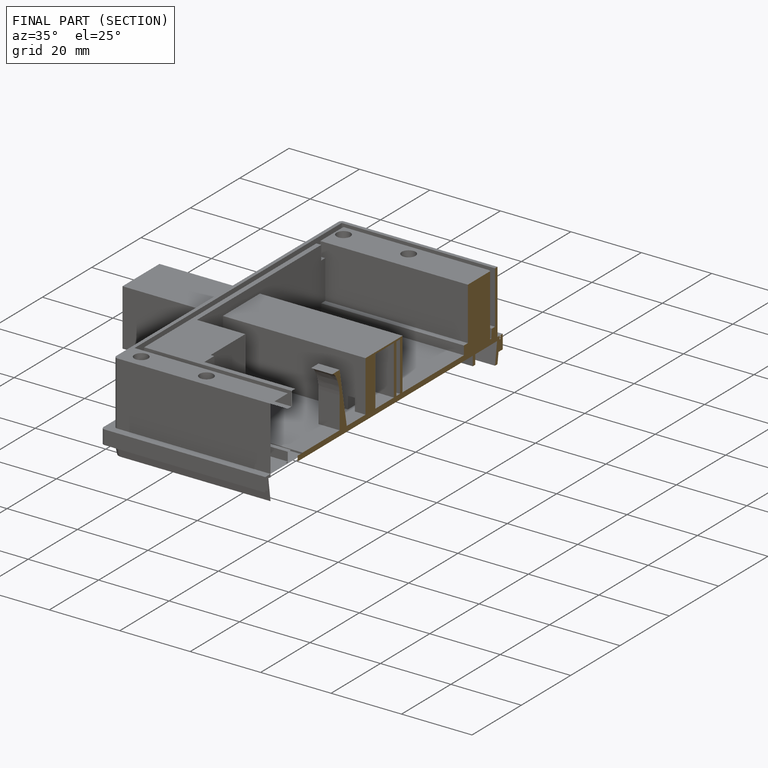
[diagram: finished part — half-section view (interior)]
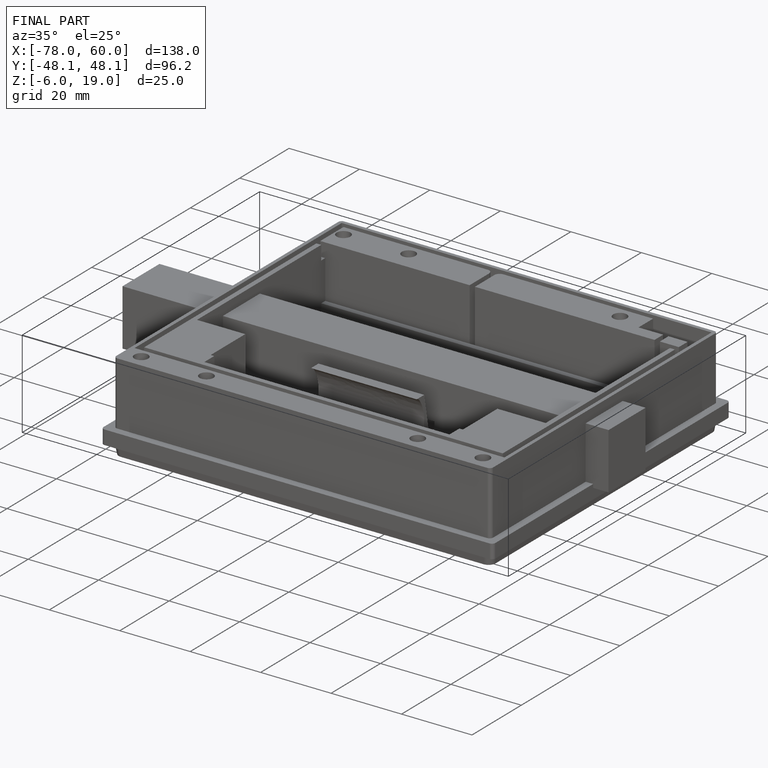
[diagram: finished part — iso view with bounding-box wireframe]
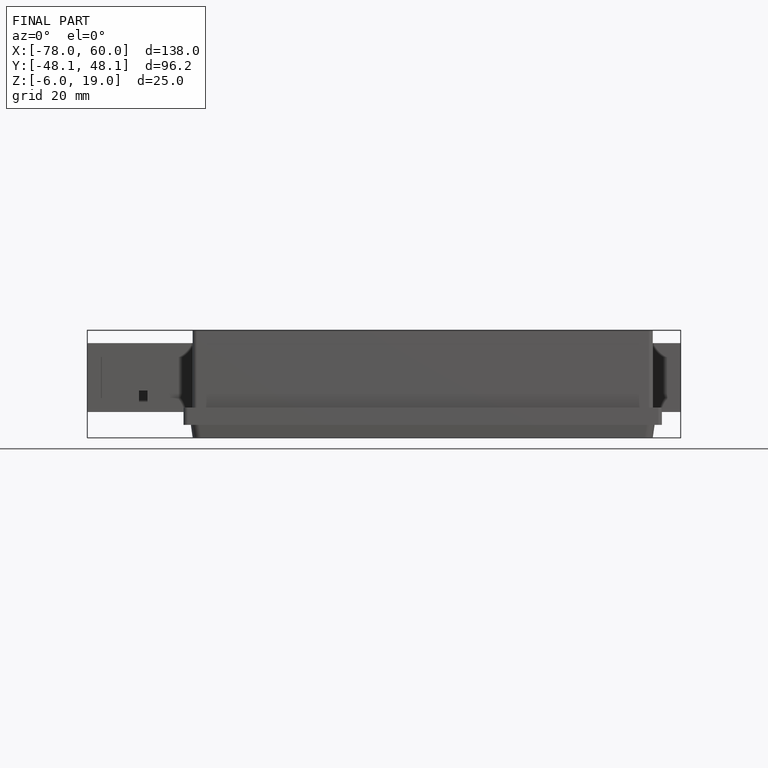
[diagram: finished part — front view with bounding-box wireframe]
